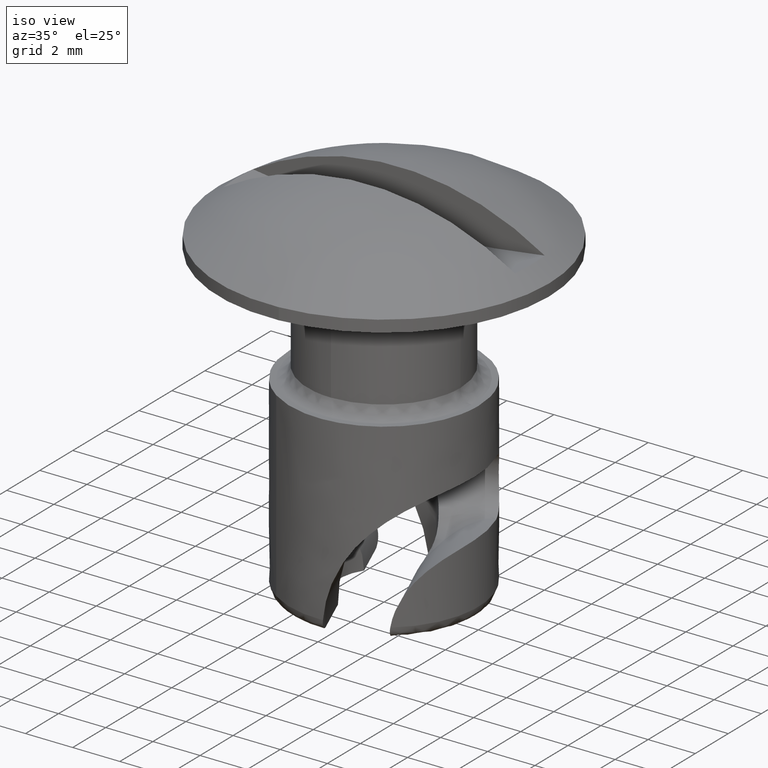
[diagram: clean part render]
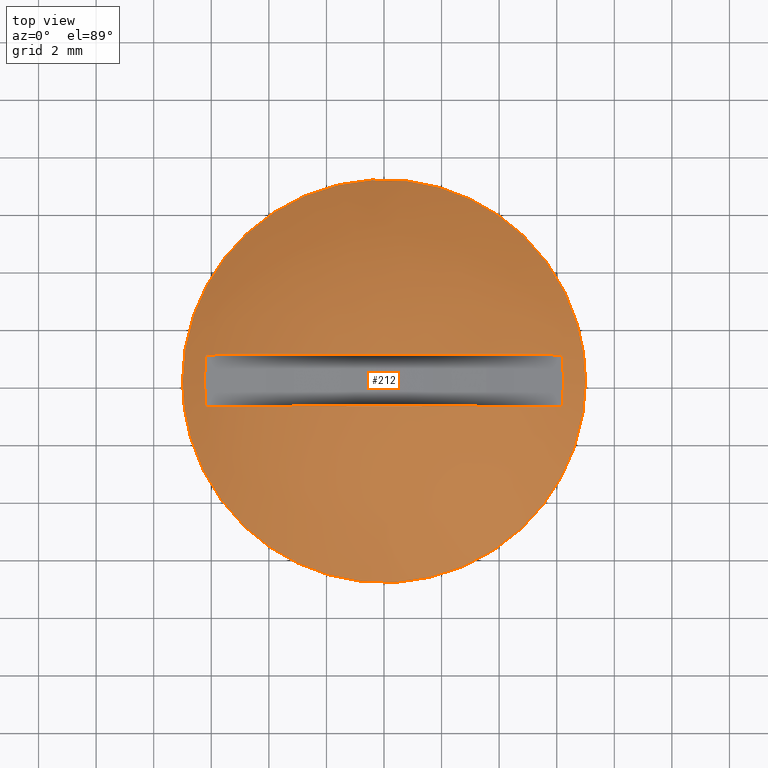
[diagram: tour spotlight — one face highlighted and labeled with its STEP entity id]
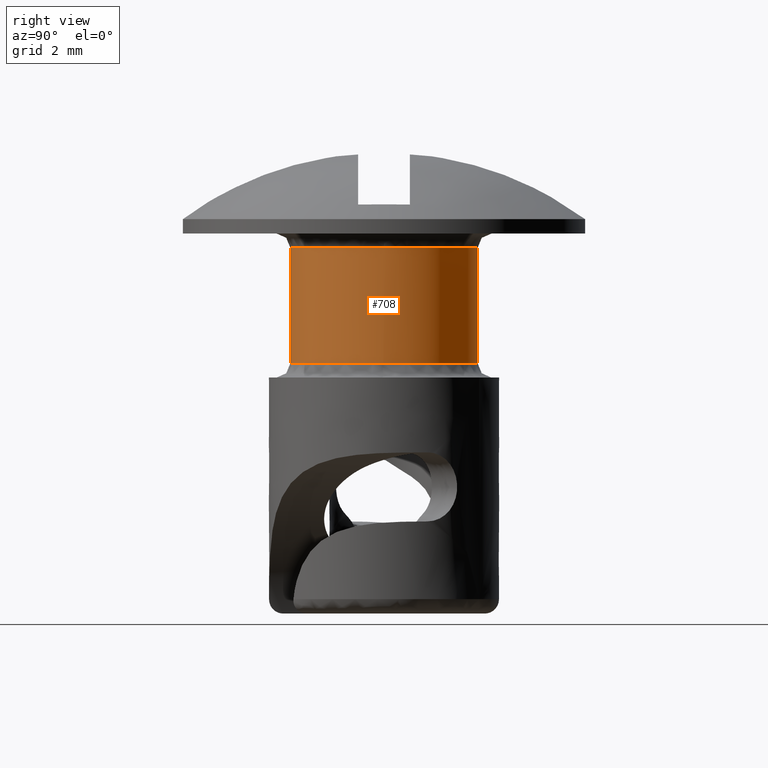
[diagram: tour spotlight — one face highlighted and labeled with its STEP entity id]
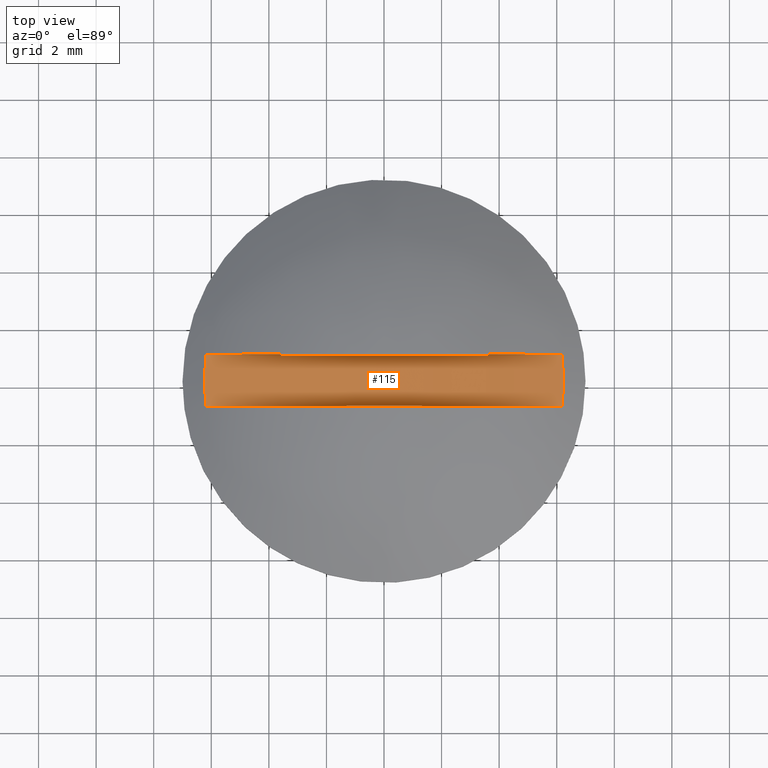
[diagram: tour spotlight — one face highlighted and labeled with its STEP entity id]
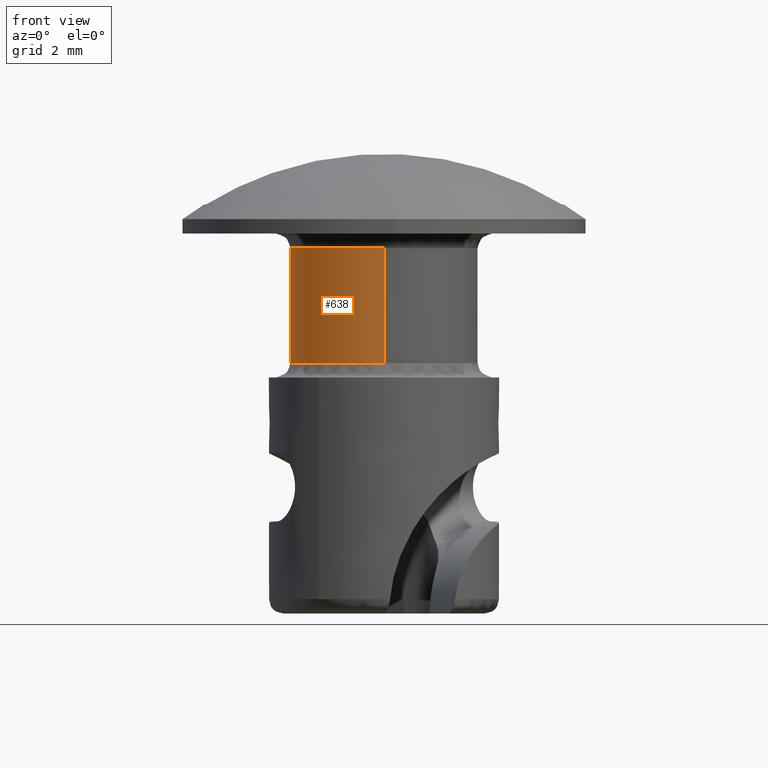
[diagram: tour spotlight — one face highlighted and labeled with its STEP entity id]
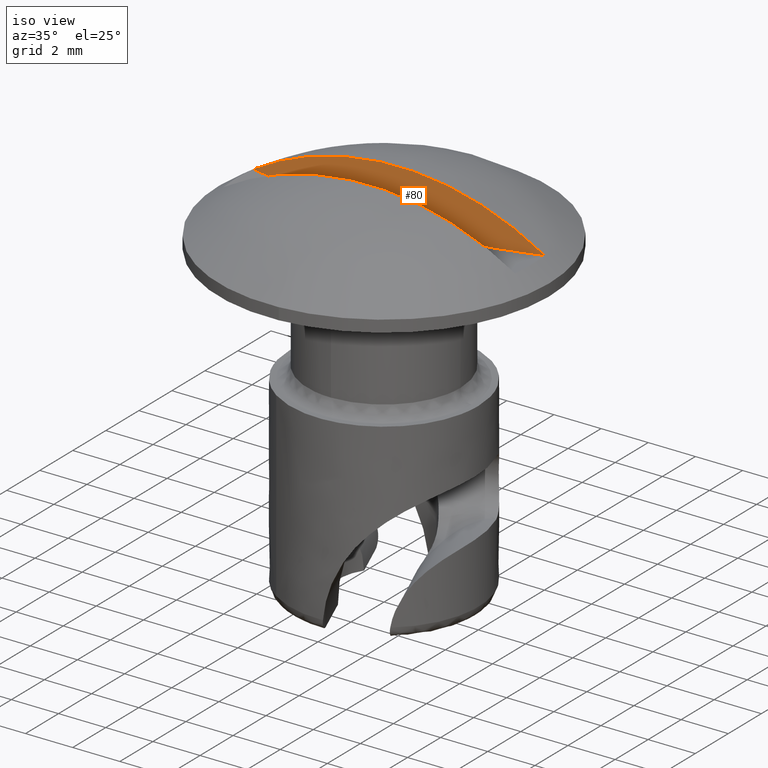
[diagram: tour spotlight — one face highlighted and labeled with its STEP entity id]
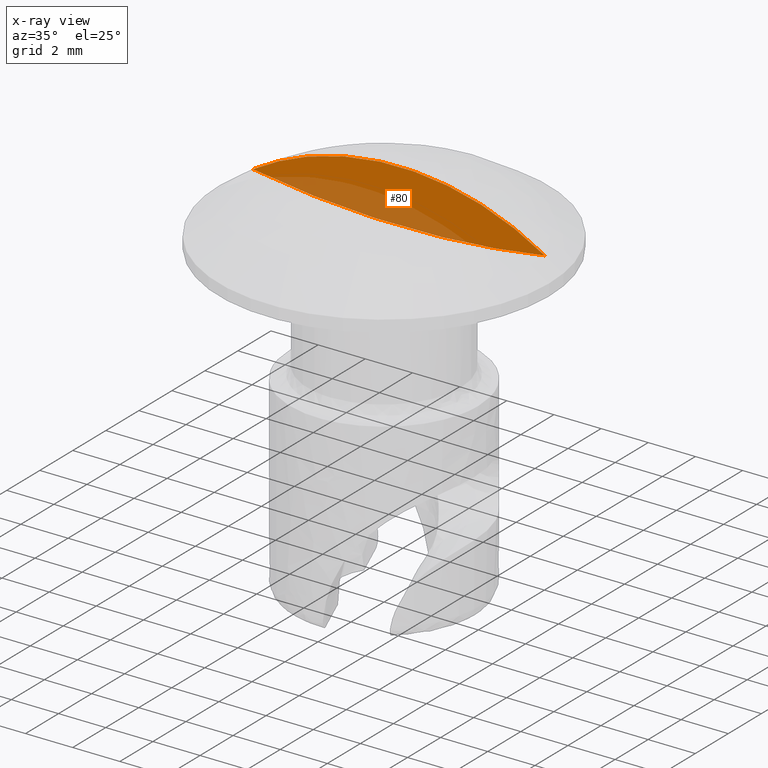
[diagram: x-ray of the same camera — body ghosted, this tour face saturated]
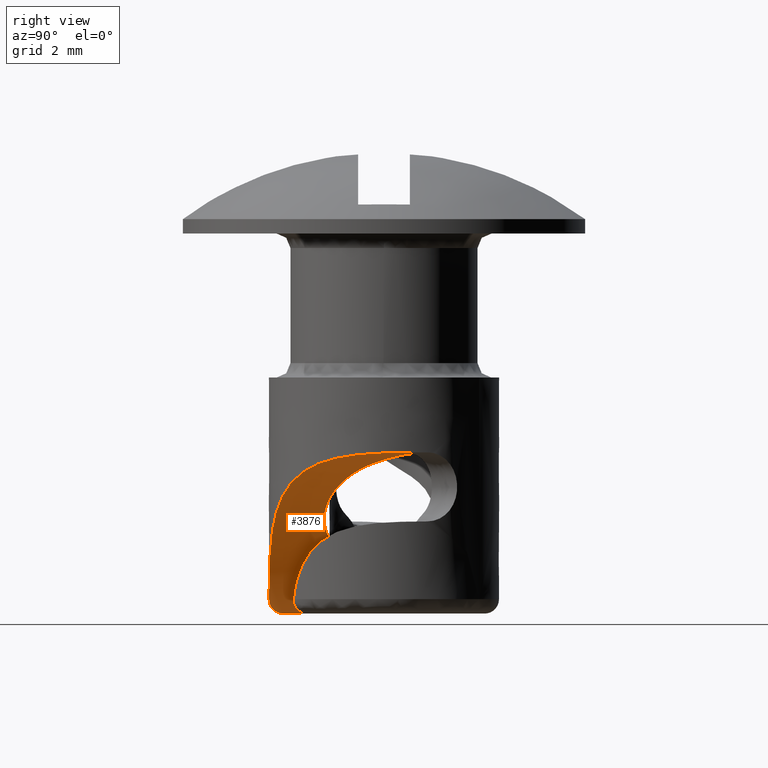
[diagram: tour spotlight — one face highlighted and labeled with its STEP entity id]
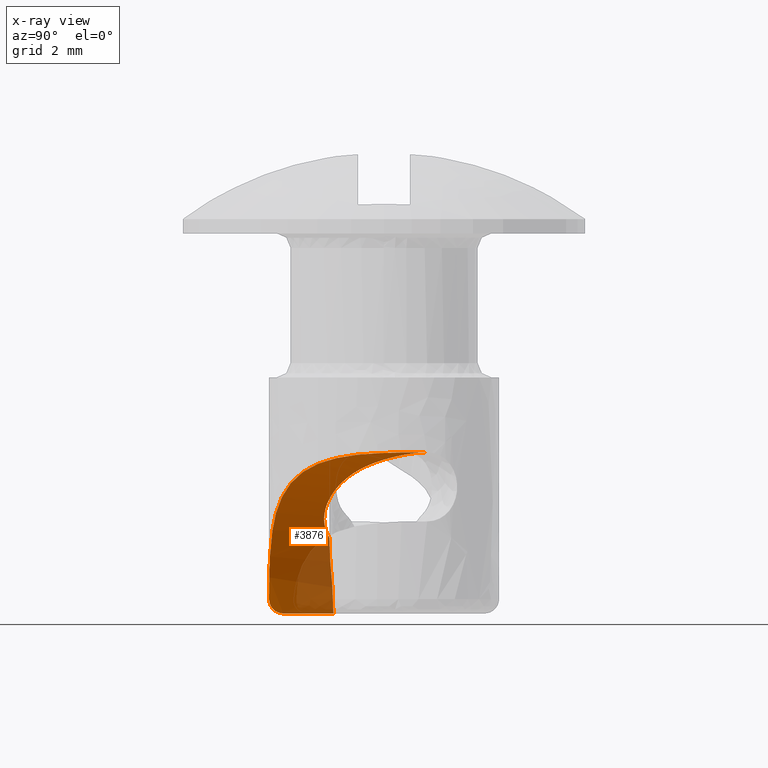
[diagram: x-ray of the same camera — body ghosted, this tour face saturated]
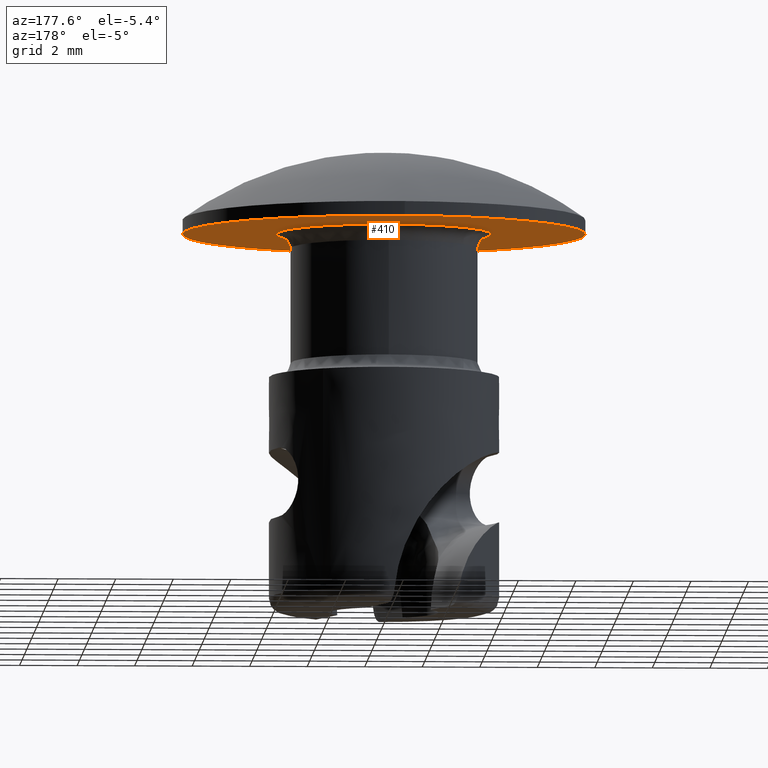
[diagram: tour spotlight — one face highlighted and labeled with its STEP entity id]
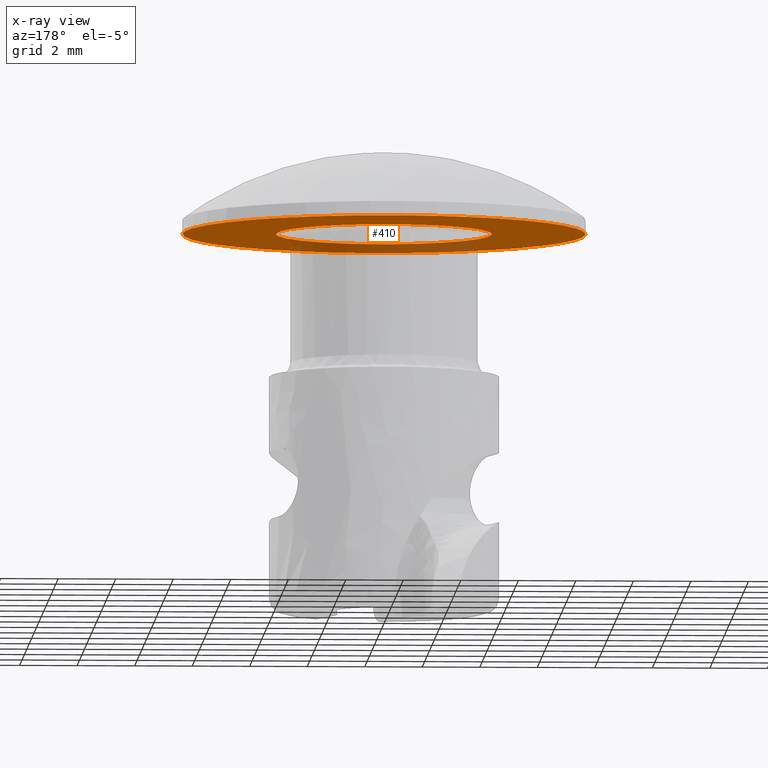
[diagram: x-ray of the same camera — body ghosted, this tour face saturated]
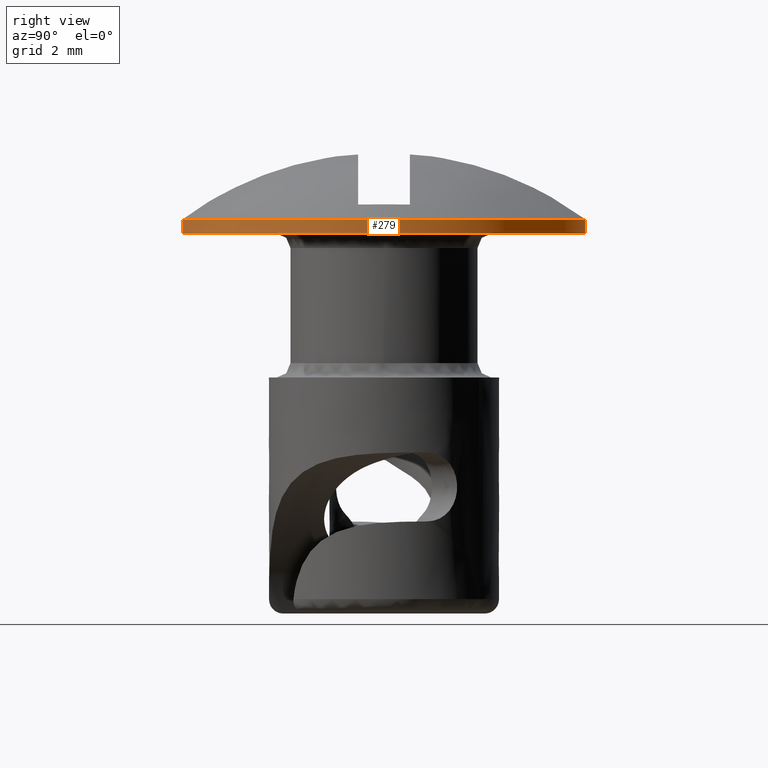
[diagram: tour spotlight — one face highlighted and labeled with its STEP entity id]
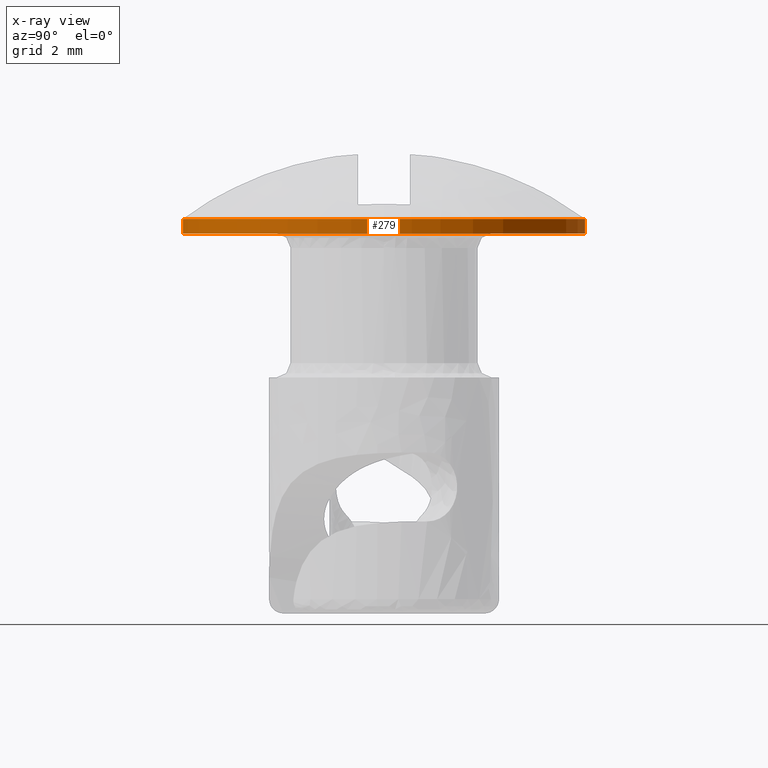
[diagram: x-ray of the same camera — body ghosted, this tour face saturated]
A machine part: a face-by-face anatomy tour. The part has 35 B-rep faces; the first image is the clean iso view, then the 8 largest visible faces are spotlighted one at a time (largest first), each with its STEP entity span.

Face 1 — top view, entity #212. In plain terms, the highlighted face is a freeform B-spline surface patch.
Definition (entity closure, byte-faithful):
#10=CARTESIAN_POINT('',(-6.188140263652630,-0.899993000000000,1.007241764877300));
#11=VERTEX_POINT('',#10);
#12=CARTESIAN_POINT('',(6.188140263652630,-0.899993000000000,1.007241764877300));
#13=VERTEX_POINT('',#12);
#27=CARTESIAN_POINT('',(6.188140263652638,-0.899993000000000,1.007241764877301));
#28=CARTESIAN_POINT('',(4.336809E-015,-0.899993000000000,4.832950620201165));
#29=CARTESIAN_POINT('',(-6.188140263652632,-0.899993000000000,1.007241764877305));
#37=(BOUNDED_CURVE()B_SPLINE_CURVE(2,(#27,#28,#29),.UNSPECIFIED.,.F.,.U.)CURVE()GEOMETRIC_REPRESENTATION_ITEM()QUASI_UNIFORM_CURVE()RATIONAL_B_SPLINE_CURVE((1.0,0.850575323171964,1.0))REPRESENTATION_ITEM(''));
#38=EDGE_CURVE('',#13,#11,#37,.T.);
#48=CARTESIAN_POINT('',(6.188138312163890,0.900010000000019,1.007241442786190));
#49=VERTEX_POINT('',#48);
#50=CARTESIAN_POINT('',(-6.188138312163890,0.900010000000019,1.007241442786190));
#51=VERTEX_POINT('',#50);
#52=CARTESIAN_POINT('',(6.188138312163890,0.900010000000019,1.007241442786190));
#53=CARTESIAN_POINT('',(3.469447E-015,0.900010000000000,4.832948008270046));
#54=CARTESIAN_POINT('',(-6.188138312163883,0.900010000000000,1.007241442786190));
#62=(BOUNDED_CURVE()B_SPLINE_CURVE(2,(#52,#53,#54),.UNSPECIFIED.,.F.,.U.)CURVE()GEOMETRIC_REPRESENTATION_ITEM()QUASI_UNIFORM_CURVE()RATIONAL_B_SPLINE_CURVE((1.0,0.850575389776752,1.0))REPRESENTATION_ITEM(''));
#63=EDGE_CURVE('',#49,#51,#62,.T.);
#96=CARTESIAN_POINT('',(-6.188140263652633,-0.899993000000000,1.007241764877306));
#97=CARTESIAN_POINT('',(-6.222578031573591,-0.599992461646414,1.012925682206770));
#98=CARTESIAN_POINT('',(-6.256576167310548,0.000008576230895,1.018609544404045));
#99=CARTESIAN_POINT('',(-6.222576732931840,0.600009538353602,1.012925466026022));
#100=CARTESIAN_POINT('',(-6.188138312163877,0.900010000000020,1.007241442786188));
#101=B_SPLINE_CURVE_WITH_KNOTS('',3,(#96,#97,#98,#99,#100),.UNSPECIFIED.,.F.,.U.,(4,1,4),(0.0,0.500000000000000,1.0),.UNSPECIFIED.);
#102=EDGE_CURVE('',#11,#51,#101,.T.);
#105=CARTESIAN_POINT('',(6.188138312163890,0.900010000000019,1.007241442786190));
#106=CARTESIAN_POINT('',(6.222576732931836,0.600009538353601,1.012925466026024));
#107=CARTESIAN_POINT('',(6.256576167337600,0.000008576230896,1.018609544398034));
#108=CARTESIAN_POINT('',(6.222578031573598,-0.599992461646414,1.012925682206767));
#109=CARTESIAN_POINT('',(6.188140263652638,-0.899993000000001,1.007241764877303));
#110=B_SPLINE_CURVE_WITH_KNOTS('',3,(#105,#106,#107,#108,#109),.UNSPECIFIED.,.F.,.U.,(4,1,4),(0.0,0.500000000000000,1.0),.UNSPECIFIED.);
#111=EDGE_CURVE('',#49,#13,#110,.T.);
#116=CARTESIAN_POINT('',(-6.763764852925422,-6.763613566578109,-2.088677180120003));
#117=CARTESIAN_POINT('',(-3.772557445157547,-7.544946127370692,0.073355971839861));
#118=CARTESIAN_POINT('',(3.772557635743908,-7.544946127370692,0.073355971839861));
#119=CARTESIAN_POINT('',(6.763765123854193,-6.763613495808874,-2.088677375946274));
#120=CARTESIAN_POINT('',(-7.545075899965879,-3.772453568946792,0.073248083667375));
#121=CARTESIAN_POINT('',(-4.265257953061460,-4.265162551268214,2.800007999999895));
#122=CARTESIAN_POINT('',(4.265258168538628,-4.265162551268214,2.800007999999895));
#123=CARTESIAN_POINT('',(7.545076193071401,-3.772453524915163,0.073247839986652));
#124=CARTESIAN_POINT('',(-7.545075899965879,3.772453360355841,0.073248083667375));
#125=CARTESIAN_POINT('',(-4.265257953061460,4.265162315433817,2.800007999999895));
#126=CARTESIAN_POINT('',(4.265258168538628,4.265162315433817,2.800007999999895));
#127=CARTESIAN_POINT('',(7.545076193071401,3.772453316324214,0.073247839986652));
#128=CARTESIAN_POINT('',(-6.763764930380590,6.763613270049848,-2.088676965797827));
#129=CARTESIAN_POINT('',(-3.772557493349566,7.544945806568517,0.073356238539129));
#130=CARTESIAN_POINT('',(3.772557683935930,7.544945806568517,0.073356238539129));
#131=CARTESIAN_POINT('',(6.763765201309358,6.763613199280611,-2.088677161624101));
#139=(BOUNDED_SURFACE()B_SPLINE_SURFACE(2,2,((#116,#120,#124,#128),(#117,#121,#125,#129),(#118,#122,#126,#130),(#119,#123,#127,#131)),.UNSPECIFIED.,.F.,.F.,.U.)B_SPLINE_SURFACE_WITH_KNOTS((3,1,3),(3,1,3),(0.933526461857557,8.819893458954921,16.706260854464769),(0.933702857649326,8.819893458954923,16.706083624207970),.UNSPECIFIED.)GEOMETRIC_REPRESENTATION_ITEM()RATIONAL_B_SPLINE_SURFACE(((1.261208231157438,1.130607036857177,1.130607036857177,1.261208216714728),(1.130601194300260,1.0,1.0,1.130601179857550),(1.130601194300260,1.0,1.0,1.130601179857550),(1.261208244353748,1.130607050053488,1.130607050053488,1.261208229911039)))REPRESENTATION_ITEM('')SURFACE());
#140=CARTESIAN_POINT('',(0.427335401912413,-6.986943856526480,0.500000000000000));
#141=VERTEX_POINT('',#140);
#142=CARTESIAN_POINT('',(-7.0,0.0,0.500000000000000));
#143=VERTEX_POINT('',#142);
#144=CARTESIAN_POINT('',(0.427335401912413,-6.986943856526480,0.500000000000000));
#145=CARTESIAN_POINT('',(0.213867149541050,-6.999999999998649,0.500000000000000));
#146=CARTESIAN_POINT('',(-8.338369E-014,-6.999999999998670,0.500000000000000));
#147=CARTESIAN_POINT('',(-7.000000000000040,-6.999999999999355,0.500000000000000));
#148=CARTESIAN_POINT('',(-7.0,0.0,0.500000000000000));
#156=(BOUNDED_CURVE()B_SPLINE_CURVE(2,(#144,#145,#146,#147,#148),.UNSPECIFIED.,.F.,.U.)B_SPLINE_CURVE_WITH_KNOTS((3,2,3),(0.739333070281084,0.750000000000000,1.0),.UNSPECIFIED.)CURVE()GEOMETRIC_REPRESENTATION_ITEM()RATIONAL_B_SPLINE_CURVE((0.976072273221702,0.987502914479079,1.0,0.707106781186547,1.0))REPRESENTATION_ITEM(''));
#157=EDGE_CURVE('',#141,#143,#156,.T.);
#158=ORIENTED_EDGE('',*,*,#157,.F.);
#159=CARTESIAN_POINT('',(7.0,0.0,0.500000000000000));
#160=VERTEX_POINT('',#159);
#161=CARTESIAN_POINT('',(7.0,0.0,0.500000000000000));
#162=CARTESIAN_POINT('',(6.999999999999957,-6.584946599166124,0.500000000000000));
#163=CARTESIAN_POINT('',(0.427335401912413,-6.986943856526480,0.500000000000000));
#171=(BOUNDED_CURVE()B_SPLINE_CURVE(2,(#161,#162,#163),.UNSPECIFIED.,.F.,.U.)B_SPLINE_CURVE_WITH_KNOTS((3,3),(0.500000000000000,0.739333070281084),.UNSPECIFIED.)CURVE()GEOMETRIC_REPRESENTATION_ITEM()RATIONAL_B_SPLINE_CURVE((1.0,0.719603866707468,0.976072273221702))REPRESENTATION_ITEM(''));
#172=EDGE_CURVE('',#160,#141,#171,.T.);
#173=ORIENTED_EDGE('',*,*,#172,.F.);
#174=CARTESIAN_POINT('',(-0.427335401912414,6.986943856526481,0.500000000000000));
#175=VERTEX_POINT('',#174);
#176=CARTESIAN_POINT('',(-0.427335401912414,6.986943856526481,0.500000000000000));
#177=CARTESIAN_POINT('',(-0.213867149541051,6.999999999998651,0.500000000000000));
#178=CARTESIAN_POINT('',(8.246797E-014,6.999999999998671,0.500000000000000));
#179=CARTESIAN_POINT('',(7.000000000000040,6.999999999999355,0.500000000000000));
#180=CARTESIAN_POINT('',(7.0,0.0,0.500000000000000));
#188=(BOUNDED_CURVE()B_SPLINE_CURVE(2,(#176,#177,#178,#179,#180),.UNSPECIFIED.,.F.,.U.)B_SPLINE_CURVE_WITH_KNOTS((3,2,3),(0.239333070281084,0.250000000000000,0.500000000000000),.UNSPECIFIED.)CURVE()GEOMETRIC_REPRESENTATION_ITEM()RATIONAL_B_SPLINE_CURVE((0.976072273221702,0.987502914479079,1.0,0.707106781186547,1.0))REPRESENTATION_ITEM(''));
#189=EDGE_CURVE('',#175,#160,#188,.T.);
#190=ORIENTED_EDGE('',*,*,#189,.F.);
#191=CARTESIAN_POINT('',(-7.0,0.0,0.500000000000000));
#192=CARTESIAN_POINT('',(-6.999999999999957,6.584946599166123,0.500000000000000));
#193=CARTESIAN_POINT('',(-0.427335401912414,6.986943856526481,0.500000000000000));
#201=(BOUNDED_CURVE()B_SPLINE_CURVE(2,(#191,#192,#193),.UNSPECIFIED.,.F.,.U.)B_SPLINE_CURVE_WITH_KNOTS((3,3),(0.0,0.239333070281084),.UNSPECIFIED.)CURVE()GEOMETRIC_REPRESENTATION_ITEM()RATIONAL_B_SPLINE_CURVE((1.0,0.719603866707468,0.976072273221702))REPRESENTATION_ITEM(''));
#202=EDGE_CURVE('',#143,#175,#201,.T.);
#203=ORIENTED_EDGE('',*,*,#202,.F.);
#204=EDGE_LOOP('',(#158,#173,#190,#203));
#205=FACE_OUTER_BOUND('',#204,.T.);
#206=ORIENTED_EDGE('',*,*,#63,.F.);
#207=ORIENTED_EDGE('',*,*,#111,.T.);
#208=ORIENTED_EDGE('',*,*,#38,.T.);
#209=ORIENTED_EDGE('',*,*,#102,.T.);
#210=EDGE_LOOP('',(#206,#207,#208,#209));
#211=FACE_BOUND('',#210,.T.);
#212=ADVANCED_FACE('',(#205,#211),#139,.T.);

Face 2 — right view, entity #708. In plain terms, the highlighted face is a freeform B-spline surface patch.
Definition (entity closure, byte-faithful):
#434=CARTESIAN_POINT('',(3.249999999999999,-2.270239E-016,-0.499999999925609));
#435=VERTEX_POINT('',#434);
#449=CARTESIAN_POINT('',(-0.028359991532612,3.249876260856513,-0.499999999925609));
#450=VERTEX_POINT('',#449);
#451=CARTESIAN_POINT('',(-0.028359991532612,3.249876260856513,-0.499999999925609));
#452=CARTESIAN_POINT('',(-0.014180265713064,3.249999999999760,-0.499999999925609));
#453=CARTESIAN_POINT('',(1.090618E-015,3.249999999999761,-0.499999999925609));
#454=CARTESIAN_POINT('',(3.250000000000000,3.249999999999881,-0.499999999925609));
#455=CARTESIAN_POINT('',(3.249999999999999,-2.270239E-016,-0.499999999925609));
#463=(BOUNDED_CURVE()B_SPLINE_CURVE(2,(#451,#452,#453,#454,#455),.UNSPECIFIED.,.F.,.U.)B_SPLINE_CURVE_WITH_KNOTS((3,2,3),(0.748460173351792,0.750000000000000,1.0),.UNSPECIFIED.)CURVE()GEOMETRIC_REPRESENTATION_ITEM()RATIONAL_B_SPLINE_CURVE((0.996414184746619,0.998195980866366,1.0,0.707106781186547,1.0))REPRESENTATION_ITEM(''));
#464=EDGE_CURVE('',#450,#435,#463,.T.);
#524=CARTESIAN_POINT('',(0.028359991532612,-3.249876260856513,-0.499999999925609));
#525=VERTEX_POINT('',#524);
#541=CARTESIAN_POINT('',(3.249999999999999,-2.270239E-016,-0.499999999925609));
#542=CARTESIAN_POINT('',(3.249999999999999,-3.221762672514294,-0.499999999925609));
#543=CARTESIAN_POINT('',(0.028359991532612,-3.249876260856513,-0.499999999925609));
#551=(BOUNDED_CURVE()B_SPLINE_CURVE(2,(#541,#542,#543),.UNSPECIFIED.,.F.,.U.)B_SPLINE_CURVE_WITH_KNOTS((3,3),(0.0,0.248460173351792),.UNSPECIFIED.)CURVE()GEOMETRIC_REPRESENTATION_ITEM()RATIONAL_B_SPLINE_CURVE((1.0,0.708910800320182,0.996414184746619))REPRESENTATION_ITEM(''));
#552=EDGE_CURVE('',#435,#525,#551,.T.);
#575=CARTESIAN_POINT('',(-0.028360243542358,3.249876258657431,-4.499992000020387));
#576=VERTEX_POINT('',#575);
#607=CARTESIAN_POINT('',(0.028360243542359,-3.249876258657431,-4.499992000020388));
#608=VERTEX_POINT('',#607);
#624=CARTESIAN_POINT('',(0.028360243542359,-3.249876258657431,-4.499992000020388));
#625=CARTESIAN_POINT('',(0.028359991532612,-3.249876260856513,-0.499999999925609));
#626=QUASI_UNIFORM_CURVE('',1,(#624,#625),.UNSPECIFIED.,.F.,.U.);
#627=EDGE_CURVE('',#608,#525,#626,.T.);
#631=CARTESIAN_POINT('',(-0.028360243542358,3.249876258657431,-4.499992000020387));
#632=CARTESIAN_POINT('',(-0.028359991532612,3.249876260856513,-0.499999999925609));
#633=QUASI_UNIFORM_CURVE('',1,(#631,#632),.UNSPECIFIED.,.F.,.U.);
#634=EDGE_CURVE('',#576,#450,#633,.T.);
#639=CARTESIAN_POINT('',(0.028361240369715,-3.249876249958556,-4.599991800042868));
#640=CARTESIAN_POINT('',(3.278237490328270,-3.221515009588841,-4.599991800042868));
#641=CARTESIAN_POINT('',(3.249876249958556,0.028361240369715,-4.599991800042868));
#642=CARTESIAN_POINT('',(3.221515009588841,3.278237490328270,-4.599991800042868));
#643=CARTESIAN_POINT('',(-0.028361240369715,3.249876249958556,-4.599991800042868));
#644=CARTESIAN_POINT('',(0.028361240369715,-3.249876249958556,-0.397500204922677));
#645=CARTESIAN_POINT('',(3.278237490328270,-3.221515009588841,-0.397500204922677));
#646=CARTESIAN_POINT('',(3.249876249958556,0.028361240369715,-0.397500204922677));
#647=CARTESIAN_POINT('',(3.221515009588841,3.278237490328270,-0.397500204922677));
#648=CARTESIAN_POINT('',(-0.028361240369715,3.249876249958556,-0.397500204922677));
#656=(BOUNDED_SURFACE()B_SPLINE_SURFACE(2,1,((#639,#644),(#640,#645),(#641,#646),(#642,#647),(#643,#648)),.UNSPECIFIED.,.F.,.F.,.U.)B_SPLINE_SURFACE_WITH_KNOTS((3,2,3),(2,2),(0.0,5.384776310850235,10.769552621700470),(0.0,4.202491595120191),.UNSPECIFIED.)GEOMETRIC_REPRESENTATION_ITEM()RATIONAL_B_SPLINE_SURFACE(((1.0,1.0),(0.707106781186548,0.707106781186548),(1.0,1.0),(0.707106781186548,0.707106781186548),(1.0,1.0)))REPRESENTATION_ITEM('')SURFACE());
#657=CARTESIAN_POINT('',(3.250000000000000,0.0,-4.499992000000176));
#658=VERTEX_POINT('',#657);
#659=CARTESIAN_POINT('',(3.250000000000000,0.0,-4.499992000000176));
#660=CARTESIAN_POINT('',(3.250000000000001,3.249999999999925,-4.499992000000300));
#661=CARTESIAN_POINT('',(1.985171E-015,3.249999999999847,-4.499992000020213));
#662=CARTESIAN_POINT('',(-0.014180391725133,3.249999999999847,-4.499992000020300));
#663=CARTESIAN_POINT('',(-0.028360243542358,3.249876258657431,-4.499992000020387));
#671=(BOUNDED_CURVE()B_SPLINE_CURVE(2,(#659,#660,#661,#662,#663),.UNSPECIFIED.,.F.,.U.)B_SPLINE_CURVE_WITH_KNOTS((3,2,3),(0.0,0.250000000000000,0.251539840307099),.UNSPECIFIED.)CURVE()GEOMETRIC_REPRESENTATION_ITEM()RATIONAL_B_SPLINE_CURVE((1.0,0.707106781186547,1.0,0.998195964863981,0.996414153136104))REPRESENTATION_ITEM(''));
#672=EDGE_CURVE('',#658,#576,#671,.T.);
#673=ORIENTED_EDGE('',*,*,#672,.T.);
#674=ORIENTED_EDGE('',*,*,#634,.T.);
#675=ORIENTED_EDGE('',*,*,#464,.T.);
#676=ORIENTED_EDGE('',*,*,#552,.T.);
#677=ORIENTED_EDGE('',*,*,#627,.F.);
#678=CARTESIAN_POINT('',(3.249743393662249,-0.040839629633071,-4.499992000040008));
#679=VERTEX_POINT('',#678);
#680=CARTESIAN_POINT('',(0.028360243542359,-3.249876258657432,-4.499992000020388));
#681=CARTESIAN_POINT('',(3.209764222192222,-3.222113542646157,-4.499992000039884));
#682=CARTESIAN_POINT('',(3.249743393662250,-0.040839629633071,-4.499992000040008));
#690=(BOUNDED_CURVE()B_SPLINE_CURVE(2,(#680,#681,#682),.UNSPECIFIED.,.F.,.U.)B_SPLINE_CURVE_WITH_KNOTS((3,3),(0.751539840307099,0.997784295921069),.UNSPECIFIED.)CURVE()GEOMETRIC_REPRESENTATION_ITEM()RATIONAL_B_SPLINE_CURVE((0.996414153136104,0.711474697456956,0.994854295642496))REPRESENTATION_ITEM(''));
#691=EDGE_CURVE('',#608,#679,#690,.T.);
#692=ORIENTED_EDGE('',*,*,#691,.T.);
#693=CARTESIAN_POINT('',(3.249743393662250,-0.040839629633071,-4.499992000040008));
#694=CARTESIAN_POINT('',(3.250000000000000,-0.020420620979730,-4.499992000020092));
#695=CARTESIAN_POINT('',(3.250000000000000,0.0,-4.499992000000176));
#703=(BOUNDED_CURVE()B_SPLINE_CURVE(2,(#693,#694,#695),.UNSPECIFIED.,.F.,.U.)B_SPLINE_CURVE_WITH_KNOTS((3,3),(0.997784295921069,1.0),.UNSPECIFIED.)CURVE()GEOMETRIC_REPRESENTATION_ITEM()RATIONAL_B_SPLINE_CURVE((0.994854295642496,0.997404141201536,1.0))REPRESENTATION_ITEM(''));
#704=EDGE_CURVE('',#679,#658,#703,.T.);
#705=ORIENTED_EDGE('',*,*,#704,.T.);
#706=EDGE_LOOP('',(#673,#674,#675,#676,#677,#692,#705));
#707=FACE_OUTER_BOUND('',#706,.T.);
#708=ADVANCED_FACE('',(#707),#656,.T.);

Face 3 — top view, entity #115. In plain terms, the highlighted face is a freeform B-spline surface patch.
Definition (entity closure, byte-faithful):
#10=CARTESIAN_POINT('',(-6.188140263652630,-0.899993000000000,1.007241764877300));
#11=VERTEX_POINT('',#10);
#12=CARTESIAN_POINT('',(6.188140263652630,-0.899993000000000,1.007241764877300));
#13=VERTEX_POINT('',#12);
#14=CARTESIAN_POINT('',(-6.188140263652636,-0.899992999999988,1.007241764877299));
#15=CARTESIAN_POINT('',(-9.540979E-015,-0.899992999999988,-0.014104269002023));
#16=CARTESIAN_POINT('',(6.188140263652626,-0.899992999999988,1.007241764877299));
#24=(BOUNDED_CURVE()B_SPLINE_CURVE(2,(#14,#15,#16),.UNSPECIFIED.,.F.,.U.)CURVE()GEOMETRIC_REPRESENTATION_ITEM()QUASI_UNIFORM_CURVE()RATIONAL_B_SPLINE_CURVE((1.0,0.986651532503229,1.0))REPRESENTATION_ITEM(''));
#25=EDGE_CURVE('',#11,#13,#24,.T.);
#48=CARTESIAN_POINT('',(6.188138312163890,0.900010000000019,1.007241442786190));
#49=VERTEX_POINT('',#48);
#50=CARTESIAN_POINT('',(-6.188138312163890,0.900010000000019,1.007241442786190));
#51=VERTEX_POINT('',#50);
#65=CARTESIAN_POINT('',(-6.188138312163890,0.900010000000019,1.007241442786190));
#66=CARTESIAN_POINT('',(-8.673617E-015,0.900010000000062,-0.014103938136785));
#67=CARTESIAN_POINT('',(6.188138312163881,0.900010000000062,1.007241442786189));
#75=(BOUNDED_CURVE()B_SPLINE_CURVE(2,(#65,#66,#67),.UNSPECIFIED.,.F.,.U.)CURVE()GEOMETRIC_REPRESENTATION_ITEM()QUASI_UNIFORM_CURVE()RATIONAL_B_SPLINE_CURVE((1.0,0.986651540979311,1.0))REPRESENTATION_ITEM(''));
#76=EDGE_CURVE('',#51,#49,#75,.T.);
#81=CARTESIAN_POINT('',(6.853035396976402,0.945010075000063,1.123056494039169));
#82=CARTESIAN_POINT('',(6.853035396976402,-0.946118076875001,1.123056494039169));
#83=CARTESIAN_POINT('',(-0.000122436915417,0.945010075000064,-0.133465008561412));
#84=CARTESIAN_POINT('',(-0.000122436915417,-0.946118076875001,-0.133465008561412));
#85=CARTESIAN_POINT('',(-6.853272306350718,0.945010075000063,1.123099931976623));
#86=CARTESIAN_POINT('',(-6.853272306350718,-0.946118076875001,1.123099931976623));
#94=(BOUNDED_SURFACE()B_SPLINE_SURFACE(1,2,((#81,#83,#85),(#82,#84,#86)),.UNSPECIFIED.,.F.,.F.,.U.)B_SPLINE_SURFACE_WITH_KNOTS((2,2),(3,3),(0.0,1.0),(0.992711938214302,14.812335573840141),.UNSPECIFIED.)GEOMETRIC_REPRESENTATION_ITEM()RATIONAL_B_SPLINE_SURFACE(((0.997453009303786,0.980899179635699,0.997048828153224),(0.997453009303786,0.980899179635699,0.997048828153224)))REPRESENTATION_ITEM('')SURFACE());
#95=ORIENTED_EDGE('',*,*,#76,.F.);
#96=CARTESIAN_POINT('',(-6.188140263652633,-0.899993000000000,1.007241764877306));
#97=CARTESIAN_POINT('',(-6.222578031573591,-0.599992461646414,1.012925682206770));
#98=CARTESIAN_POINT('',(-6.256576167310548,0.000008576230895,1.018609544404045));
#99=CARTESIAN_POINT('',(-6.222576732931840,0.600009538353602,1.012925466026022));
#100=CARTESIAN_POINT('',(-6.188138312163877,0.900010000000020,1.007241442786188));
#101=B_SPLINE_CURVE_WITH_KNOTS('',3,(#96,#97,#98,#99,#100),.UNSPECIFIED.,.F.,.U.,(4,1,4),(0.0,0.500000000000000,1.0),.UNSPECIFIED.);
#102=EDGE_CURVE('',#11,#51,#101,.T.);
#103=ORIENTED_EDGE('',*,*,#102,.F.);
#104=ORIENTED_EDGE('',*,*,#25,.T.);
#105=CARTESIAN_POINT('',(6.188138312163890,0.900010000000019,1.007241442786190));
#106=CARTESIAN_POINT('',(6.222576732931836,0.600009538353601,1.012925466026024));
#107=CARTESIAN_POINT('',(6.256576167337600,0.000008576230896,1.018609544398034));
#108=CARTESIAN_POINT('',(6.222578031573598,-0.599992461646414,1.012925682206767));
#109=CARTESIAN_POINT('',(6.188140263652638,-0.899993000000001,1.007241764877303));
#110=B_SPLINE_CURVE_WITH_KNOTS('',3,(#105,#106,#107,#108,#109),.UNSPECIFIED.,.F.,.U.,(4,1,4),(0.0,0.500000000000000,1.0),.UNSPECIFIED.);
#111=EDGE_CURVE('',#49,#13,#110,.T.);
#112=ORIENTED_EDGE('',*,*,#111,.F.);
#113=EDGE_LOOP('',(#95,#103,#104,#112));
#114=FACE_OUTER_BOUND('',#113,.T.);
#115=ADVANCED_FACE('',(#114),#94,.F.);

Face 4 — front view, entity #638. In plain terms, the highlighted face is a freeform B-spline surface patch.
Definition (entity closure, byte-faithful):
#449=CARTESIAN_POINT('',(-0.028359991532612,3.249876260856513,-0.499999999925609));
#450=VERTEX_POINT('',#449);
#466=CARTESIAN_POINT('',(-3.250000000000000,5.170135E-018,-0.499999999925609));
#467=VERTEX_POINT('',#466);
#468=CARTESIAN_POINT('',(-3.250000000000000,5.170135E-018,-0.499999999925609));
#469=CARTESIAN_POINT('',(-3.249999999999999,3.221762672514295,-0.499999999925609));
#470=CARTESIAN_POINT('',(-0.028359991532612,3.249876260856513,-0.499999999925609));
#478=(BOUNDED_CURVE()B_SPLINE_CURVE(2,(#468,#469,#470),.UNSPECIFIED.,.F.,.U.)B_SPLINE_CURVE_WITH_KNOTS((3,3),(0.500000000000000,0.748460173351792),.UNSPECIFIED.)CURVE()GEOMETRIC_REPRESENTATION_ITEM()RATIONAL_B_SPLINE_CURVE((1.0,0.708910800320181,0.996414184746619))REPRESENTATION_ITEM(''));
#479=EDGE_CURVE('',#467,#450,#478,.T.);
#524=CARTESIAN_POINT('',(0.028359991532612,-3.249876260856513,-0.499999999925609));
#525=VERTEX_POINT('',#524);
#526=CARTESIAN_POINT('',(0.028359991532612,-3.249876260856513,-0.499999999925609));
#527=CARTESIAN_POINT('',(0.014180265713063,-3.249999999999760,-0.499999999925609));
#528=CARTESIAN_POINT('',(-2.339576E-015,-3.249999999999761,-0.499999999925609));
#529=CARTESIAN_POINT('',(-3.250000000000001,-3.249999999999881,-0.499999999925609));
#530=CARTESIAN_POINT('',(-3.250000000000000,5.170135E-018,-0.499999999925609));
#538=(BOUNDED_CURVE()B_SPLINE_CURVE(2,(#526,#527,#528,#529,#530),.UNSPECIFIED.,.F.,.U.)B_SPLINE_CURVE_WITH_KNOTS((3,2,3),(0.248460173351792,0.250000000000000,0.500000000000000),.UNSPECIFIED.)CURVE()GEOMETRIC_REPRESENTATION_ITEM()RATIONAL_B_SPLINE_CURVE((0.996414184746619,0.998195980866366,1.0,0.707106781186547,1.0))REPRESENTATION_ITEM(''));
#539=EDGE_CURVE('',#525,#467,#538,.T.);
#557=CARTESIAN_POINT('',(-0.028361240369715,3.249876249958556,-4.599991800042868));
#558=CARTESIAN_POINT('',(-3.278237490328270,3.221515009588841,-4.599991800042868));
#559=CARTESIAN_POINT('',(-3.249876249958556,-0.028361240369715,-4.599991800042868));
#560=CARTESIAN_POINT('',(-3.221515009588841,-3.278237490328270,-4.599991800042868));
#561=CARTESIAN_POINT('',(0.028361240369715,-3.249876249958556,-4.599991800042868));
#562=CARTESIAN_POINT('',(-0.028361240369715,3.249876249958556,-0.397500204922677));
#563=CARTESIAN_POINT('',(-3.278237490328270,3.221515009588841,-0.397500204922677));
#564=CARTESIAN_POINT('',(-3.249876249958556,-0.028361240369715,-0.397500204922677));
#565=CARTESIAN_POINT('',(-3.221515009588841,-3.278237490328270,-0.397500204922677));
#566=CARTESIAN_POINT('',(0.028361240369715,-3.249876249958556,-0.397500204922677));
#574=(BOUNDED_SURFACE()B_SPLINE_SURFACE(2,1,((#557,#562),(#558,#563),(#559,#564),(#560,#565),(#561,#566)),.UNSPECIFIED.,.F.,.F.,.U.)B_SPLINE_SURFACE_WITH_KNOTS((3,2,3),(2,2),(0.0,5.384776310850235,10.769552621700470),(0.0,4.202491595120191),.UNSPECIFIED.)GEOMETRIC_REPRESENTATION_ITEM()RATIONAL_B_SPLINE_SURFACE(((1.0,1.0),(0.707106781186548,0.707106781186548),(1.0,1.0),(0.707106781186548,0.707106781186548),(1.0,1.0)))REPRESENTATION_ITEM('')SURFACE());
#575=CARTESIAN_POINT('',(-0.028360243542358,3.249876258657431,-4.499992000020387));
#576=VERTEX_POINT('',#575);
#577=CARTESIAN_POINT('',(-3.249743393662249,0.040839629633072,-4.499992000040008));
#578=VERTEX_POINT('',#577);
#579=CARTESIAN_POINT('',(-0.028360243542358,3.249876258657431,-4.499992000020387));
#580=CARTESIAN_POINT('',(-3.209764222192221,3.222113542646157,-4.499992000039884));
#581=CARTESIAN_POINT('',(-3.249743393662249,0.040839629633072,-4.499992000040008));
#589=(BOUNDED_CURVE()B_SPLINE_CURVE(2,(#579,#580,#581),.UNSPECIFIED.,.F.,.U.)B_SPLINE_CURVE_WITH_KNOTS((3,3),(0.251539840307099,0.497784295921069),.UNSPECIFIED.)CURVE()GEOMETRIC_REPRESENTATION_ITEM()RATIONAL_B_SPLINE_CURVE((0.996414153136104,0.711474697456956,0.994854295642496))REPRESENTATION_ITEM(''));
#590=EDGE_CURVE('',#576,#578,#589,.T.);
#591=ORIENTED_EDGE('',*,*,#590,.T.);
#592=CARTESIAN_POINT('',(-3.250000000000000,0.0,-4.499992000000176));
#593=VERTEX_POINT('',#592);
#594=CARTESIAN_POINT('',(-3.249743393662249,0.040839629633072,-4.499992000040008));
#595=CARTESIAN_POINT('',(-3.250000000000000,0.020420620979730,-4.499992000020092));
#596=CARTESIAN_POINT('',(-3.250000000000000,0.0,-4.499992000000176));
#604=(BOUNDED_CURVE()B_SPLINE_CURVE(2,(#594,#595,#596),.UNSPECIFIED.,.F.,.U.)B_SPLINE_CURVE_WITH_KNOTS((3,3),(0.497784295921069,0.500000000000000),.UNSPECIFIED.)CURVE()GEOMETRIC_REPRESENTATION_ITEM()RATIONAL_B_SPLINE_CURVE((0.994854295642496,0.997404141201536,1.0))REPRESENTATION_ITEM(''));
#605=EDGE_CURVE('',#578,#593,#604,.T.);
#606=ORIENTED_EDGE('',*,*,#605,.T.);
#607=CARTESIAN_POINT('',(0.028360243542359,-3.249876258657431,-4.499992000020388));
#608=VERTEX_POINT('',#607);
#609=CARTESIAN_POINT('',(-3.250000000000000,0.0,-4.499992000000176));
#610=CARTESIAN_POINT('',(-3.250000000000001,-3.249999999999924,-4.499992000000300));
#611=CARTESIAN_POINT('',(-1.667368E-015,-3.249999999999847,-4.499992000020214));
#612=CARTESIAN_POINT('',(0.014180391725134,-3.249999999999847,-4.499992000020301));
#613=CARTESIAN_POINT('',(0.028360243542359,-3.249876258657432,-4.499992000020388));
#621=(BOUNDED_CURVE()B_SPLINE_CURVE(2,(#609,#610,#611,#612,#613),.UNSPECIFIED.,.F.,.U.)B_SPLINE_CURVE_WITH_KNOTS((3,2,3),(0.500000000000000,0.750000000000000,0.751539840307099),.UNSPECIFIED.)CURVE()GEOMETRIC_REPRESENTATION_ITEM()RATIONAL_B_SPLINE_CURVE((1.0,0.707106781186547,1.0,0.998195964863981,0.996414153136104))REPRESENTATION_ITEM(''));
#622=EDGE_CURVE('',#593,#608,#621,.T.);
#623=ORIENTED_EDGE('',*,*,#622,.T.);
#624=CARTESIAN_POINT('',(0.028360243542359,-3.249876258657431,-4.499992000020388));
#625=CARTESIAN_POINT('',(0.028359991532612,-3.249876260856513,-0.499999999925609));
#626=QUASI_UNIFORM_CURVE('',1,(#624,#625),.UNSPECIFIED.,.F.,.U.);
#627=EDGE_CURVE('',#608,#525,#626,.T.);
#628=ORIENTED_EDGE('',*,*,#627,.T.);
#629=ORIENTED_EDGE('',*,*,#539,.T.);
#630=ORIENTED_EDGE('',*,*,#479,.T.);
#631=CARTESIAN_POINT('',(-0.028360243542358,3.249876258657431,-4.499992000020387));
#632=CARTESIAN_POINT('',(-0.028359991532612,3.249876260856513,-0.499999999925609));
#633=QUASI_UNIFORM_CURVE('',1,(#631,#632),.UNSPECIFIED.,.F.,.U.);
#634=EDGE_CURVE('',#576,#450,#633,.T.);
#635=ORIENTED_EDGE('',*,*,#634,.F.);
#636=EDGE_LOOP('',(#591,#606,#623,#628,#629,#630,#635));
#637=FACE_OUTER_BOUND('',#636,.T.);
#638=ADVANCED_FACE('',(#637),#574,.T.);

Face 5 — iso view, entity #80. An x-ray twin of the same camera follows (body ghosted, this face saturated) — the face is partly hidden behind the body. In plain terms, the highlighted face is a freeform B-spline surface patch.
Definition (entity closure, byte-faithful):
#43=CARTESIAN_POINT('',(-6.806333305561437,0.900010000000000,2.878810278233819));
#44=CARTESIAN_POINT('',(6.806333637519044,0.900010000000000,2.878810278233819));
#45=CARTESIAN_POINT('',(-6.806333305561437,0.900010000000000,0.386831151187017));
#46=CARTESIAN_POINT('',(6.806333637519044,0.900010000000000,0.386831151187017));
#47=B_SPLINE_SURFACE_WITH_KNOTS('',1,1,((#43,#45),(#44,#46)),.UNSPECIFIED.,.F.,.F.,.U.,(2,2),(2,2),(0.0,13.612666943080480),(0.0,2.491979127046801),.UNSPECIFIED.);
#48=CARTESIAN_POINT('',(6.188138312163890,0.900010000000019,1.007241442786190));
#49=VERTEX_POINT('',#48);
#50=CARTESIAN_POINT('',(-6.188138312163890,0.900010000000019,1.007241442786190));
#51=VERTEX_POINT('',#50);
#52=CARTESIAN_POINT('',(6.188138312163890,0.900010000000019,1.007241442786190));
#53=CARTESIAN_POINT('',(3.469447E-015,0.900010000000000,4.832948008270046));
#54=CARTESIAN_POINT('',(-6.188138312163883,0.900010000000000,1.007241442786190));
#62=(BOUNDED_CURVE()B_SPLINE_CURVE(2,(#52,#53,#54),.UNSPECIFIED.,.F.,.U.)CURVE()GEOMETRIC_REPRESENTATION_ITEM()QUASI_UNIFORM_CURVE()RATIONAL_B_SPLINE_CURVE((1.0,0.850575389776752,1.0))REPRESENTATION_ITEM(''));
#63=EDGE_CURVE('',#49,#51,#62,.T.);
#64=ORIENTED_EDGE('',*,*,#63,.T.);
#65=CARTESIAN_POINT('',(-6.188138312163890,0.900010000000019,1.007241442786190));
#66=CARTESIAN_POINT('',(-8.673617E-015,0.900010000000062,-0.014103938136785));
#67=CARTESIAN_POINT('',(6.188138312163881,0.900010000000062,1.007241442786189));
#75=(BOUNDED_CURVE()B_SPLINE_CURVE(2,(#65,#66,#67),.UNSPECIFIED.,.F.,.U.)CURVE()GEOMETRIC_REPRESENTATION_ITEM()QUASI_UNIFORM_CURVE()RATIONAL_B_SPLINE_CURVE((1.0,0.986651540979311,1.0))REPRESENTATION_ITEM(''));
#76=EDGE_CURVE('',#51,#49,#75,.T.);
#77=ORIENTED_EDGE('',*,*,#76,.T.);
#78=EDGE_LOOP('',(#64,#77));
#79=FACE_OUTER_BOUND('',#78,.T.);
#80=ADVANCED_FACE('',(#79),#47,.F.);

Face 6 — right view, entity #3876. An x-ray twin of the same camera follows (body ghosted, this face saturated) — the face is partly hidden behind the body. In plain terms, the highlighted face is a freeform B-spline surface patch.
Definition (entity closure, byte-faithful):
#2754=CARTESIAN_POINT('',(3.708735643717875,1.498425815653404,-7.600000000000000));
#2755=VERTEX_POINT('',#2754);
#3122=CARTESIAN_POINT('',(0.041622970697082,-1.899544031685065,-10.566299029834960));
#3123=VERTEX_POINT('',#3122);
#3144=CARTESIAN_POINT('',(-0.721534682210653,-1.757665412519450,-13.199992000000099));
#3145=VERTEX_POINT('',#3144);
#3146=CARTESIAN_POINT('',(-0.721534682210653,-1.757665412519450,-13.199992000000099));
#3147=CARTESIAN_POINT('',(-0.721893078104241,-1.757518288348264,-12.965842787353401));
#3148=CARTESIAN_POINT('',(-0.703208962489130,-1.765489430722806,-12.735152465446751));
#3149=CARTESIAN_POINT('',(-0.631763697145400,-1.792297521587349,-12.279764361756710));
#3150=CARTESIAN_POINT('',(-0.579070358488895,-1.810971929693898,-12.055047065684199));
#3151=CARTESIAN_POINT('',(-0.477514230229960,-1.839351954489084,-11.721563814201660));
#3152=CARTESIAN_POINT('',(-0.440060506339343,-1.848799836677858,-11.611568579605841));
#3153=CARTESIAN_POINT('',(-0.359109351128732,-1.866213963957942,-11.395070518508829));
#3154=CARTESIAN_POINT('',(-0.315540545850555,-1.874201365419363,-11.288332696329601));
#3155=CARTESIAN_POINT('',(-0.176354874779555,-1.894118616930675,-10.972221033873369));
#3156=CARTESIAN_POINT('',(-0.072309615192374,-1.902040532216150,-10.766924644616980));
#3157=CARTESIAN_POINT('',(0.041622970697111,-1.899544031685064,-10.566299029834999));
#3158=B_SPLINE_CURVE_WITH_KNOTS('',3,(#3146,#3147,#3148,#3149,#3150,#3151,#3152,#3153,#3154,#3155,#3156,#3157),.UNSPECIFIED.,.F.,.U.,(4,2,2,2,2,4),(0.0,0.249999999999999,0.499999999999998,0.624999999999999,0.749999999999999,1.0),.UNSPECIFIED.);
#3159=EDGE_CURVE('',#3145,#3123,#3158,.T.);
#3248=CARTESIAN_POINT('',(0.205768854712659,-3.994703891207740,-12.699992000000160));
#3249=VERTEX_POINT('',#3248);
#3263=CARTESIAN_POINT('',(3.708735643717875,1.498425815653404,-7.600000000000000));
#3264=CARTESIAN_POINT('',(3.789816242015302,1.297744205807735,-7.599999999999970));
#3265=CARTESIAN_POINT('',(3.853610974872032,1.093263577412488,-7.600772875729547));
#3266=CARTESIAN_POINT('',(3.948059474699816,0.677029674079290,-7.604736595366661));
#3267=CARTESIAN_POINT('',(3.978711172169416,0.465275843627494,-7.607918917681144));
#3268=CARTESIAN_POINT('',(3.995564957132692,0.195894578718415,-7.615217662911019));
#3269=CARTESIAN_POINT('',(3.997848564085063,0.141795779559010,-7.616849857873356));
#3270=CARTESIAN_POINT('',(4.000216753743072,0.034133671513432,-7.620487619688186));
#3271=CARTESIAN_POINT('',(4.000310720402404,-0.019555583718766,-7.622496360478704));
#3272=CARTESIAN_POINT('',(3.997374375231631,-0.180197743397610,-7.629181404475868));
#3273=CARTESIAN_POINT('',(3.991130562209952,-0.286725832207317,-7.634513265878188));
#3274=CARTESIAN_POINT('',(3.959775703180690,-0.604579068728949,-7.653959452422089));
#3275=CARTESIAN_POINT('',(3.922112906822729,-0.814186815777883,-7.671451332132992));
#3276=CARTESIAN_POINT('',(3.853761044358152,-1.073029672022521,-7.702641931695323));
#3277=CARTESIAN_POINT('',(3.838978122430332,-1.124771750286358,-7.709371911327249));
#3278=CARTESIAN_POINT('',(3.807509609817085,-1.227083976707175,-7.723770845920249));
#3279=CARTESIAN_POINT('',(3.757456182568843,-1.378856449089958,-7.746776668644611));
#3280=CARTESIAN_POINT('',(3.699122988859857,-1.525589463259218,-7.774337358302792));
#3281=CARTESIAN_POINT('',(3.571982284881069,-1.812368324864488,-7.836501287930684));
#3282=CARTESIAN_POINT('',(3.473289894623778,-1.994666556306956,-7.887282724575035));
#3283=CARTESIAN_POINT('',(3.333735905731934,-2.211076038045203,-7.966273291350484));
#3284=CARTESIAN_POINT('',(3.304936856167119,-2.253889410775154,-7.982896306513405));
#3285=CARTESIAN_POINT('',(3.246122206245276,-2.337801471763046,-8.017586295371046));
#3286=CARTESIAN_POINT('',(3.156252307149330,-2.460874529570284,-8.071677189101809));
#3287=CARTESIAN_POINT('',(3.061826482051081,-2.575801728123307,-8.132117061349236));
#3288=CARTESIAN_POINT('',(2.867818098297072,-2.795310921927876,-8.261970828628712));
#3289=CARTESIAN_POINT('',(2.731615405252652,-2.927880516877460,-8.360484840940163));
#3290=CARTESIAN_POINT('',(2.555468277276900,-3.077615931860113,-8.500482646460059));
#3291=CARTESIAN_POINT('',(2.519980797999549,-3.106724907485757,-8.529300169703664));
#3292=CARTESIAN_POINT('',(2.449137228549457,-3.162873647304286,-8.588113109815474));
#3293=CARTESIAN_POINT('',(2.342830668632973,-3.244196303757057,-8.678286934049607));
#3294=CARTESIAN_POINT('',(2.236691472767790,-3.317262990057821,-8.774323978974886));
#3295=CARTESIAN_POINT('',(2.095796109974275,-3.408028925196530,-8.907615685544689));
#3296=CARTESIAN_POINT('',(2.025659446669304,-3.450082715466893,-8.976882592651826));
#3297=CARTESIAN_POINT('',(1.921257087853521,-3.508612679782932,-9.084763703480409));
#3298=CARTESIAN_POINT('',(1.886589940101574,-3.527363601466302,-9.121387812844381));
#3299=CARTESIAN_POINT('',(1.817578161753505,-3.563414823586853,-9.195975244005739));
#3300=CARTESIAN_POINT('',(1.783169554541134,-3.580745444036078,-9.234012034142028));
#3301=CARTESIAN_POINT('',(1.613033766418871,-3.663472067865985,-9.426479837185491));
#3302=CARTESIAN_POINT('',(1.482986987825049,-3.717243031302735,-9.587707480761207));
#3303=CARTESIAN_POINT('',(1.236698357886627,-3.806274206021905,-9.924298447189083));
#3304=CARTESIAN_POINT('',(1.120446684108449,-3.841502833200432,-10.099662647876050));
#3305=CARTESIAN_POINT('',(0.957908198356716,-3.884011853853579,-10.373477761067990));
#3306=CARTESIAN_POINT('',(0.905705251657000,-3.896450403323480,-10.466548770707400));
#3307=CARTESIAN_POINT('',(0.805555123776746,-3.918380876203309,-10.656374165562120));
#3308=CARTESIAN_POINT('',(0.757944234396753,-3.927799075888550,-10.752505848182309));
#3309=CARTESIAN_POINT('',(0.623151315216673,-3.952217429541130,-11.043543537596660));
#3310=CARTESIAN_POINT('',(0.543759445167942,-3.963466434363898,-11.241513917056290));
#3311=CARTESIAN_POINT('',(0.407032704488644,-3.979832268829340,-11.645542024260861));
#3312=CARTESIAN_POINT('',(0.349696208037411,-3.984944904570063,-11.851599389006880));
#3313=CARTESIAN_POINT('',(0.281593372982556,-3.990140787602113,-12.167123652098409));
#3314=CARTESIAN_POINT('',(0.261884957381903,-3.991451814718027,-12.273468557289350));
#3315=CARTESIAN_POINT('',(0.229003439772380,-3.993473268308074,-12.486270620101600));
#3316=CARTESIAN_POINT('',(0.215769063158924,-3.994188776321901,-12.592977385333400));
#3317=CARTESIAN_POINT('',(0.205768854712659,-3.994703891207740,-12.699992000000160));
#3318=B_SPLINE_CURVE_WITH_KNOTS('',3,(#3263,#3264,#3265,#3266,#3267,#3268,#3269,#3270,#3271,#3272,#3273,#3274,#3275,#3276,#3277,#3278,#3279,#3280,#3281,#3282,#3283,#3284,#3285,#3286,#3287,#3288,#3289,#3290,#3291,#3292,#3293,#3294,#3295,#3296,#3297,#3298,#3299,#3300,#3301,#3302,#3303,#3304,#3305,#3306,#3307,#3308,#3309,#3310,#3311,#3312,#3313,#3314,#3315,#3316,#3317),.UNSPECIFIED.,.F.,.U.,(4,2,2,2,2,2,2,2,1,2,2,2,1,2,2,2,1,2,2,2,2,2,2,2,2,2,2,2,4),(0.0,0.062500000000000,0.125000000000001,0.140625000000001,0.156250000000001,0.187500000000001,0.250000000000001,0.265625000000001,0.281250000000001,0.312500000000001,0.375000000000001,0.390625000000001,0.406250000000002,0.437500000000002,0.500000000000001,0.515625000000001,0.531250000000001,0.562500000000001,0.593750000000001,0.609375000000001,0.625000000000001,0.687500000000001,0.750000000000001,0.781250000000001,0.812500000000001,0.875000000000001,0.937500000000000,0.968750000000000,1.0),.UNSPECIFIED.);
#3319=EDGE_CURVE('',#2755,#3249,#3318,.T.);
#3538=CARTESIAN_POINT('',(0.041622970697082,-1.899544031685065,-10.566299029834960));
#3539=CARTESIAN_POINT('',(0.080337023952727,-1.925916920086349,-10.518275681175650));
#3540=CARTESIAN_POINT('',(0.157566283537069,-1.978527237866357,-10.422475646102400));
#3541=CARTESIAN_POINT('',(0.276925222486489,-2.032810531343777,-10.269764316652131));
#3542=CARTESIAN_POINT('',(0.398690409849234,-2.067930356315856,-10.112429171735171));
#3543=CARTESIAN_POINT('',(0.523763392682317,-2.081966990022336,-9.950447861737951));
#3544=CARTESIAN_POINT('',(0.652695179609911,-2.075135563597070,-9.784843955918602));
#3545=CARTESIAN_POINT('',(0.786132785236489,-2.047095805294400,-9.616443819259633));
#3546=CARTESIAN_POINT('',(0.924684365212739,-1.997671150207141,-9.446218389260389));
#3547=CARTESIAN_POINT('',(1.068958099962270,-1.926672099629939,-9.275193212175912));
#3548=CARTESIAN_POINT('',(1.219478226865577,-1.833832441103516,-9.104492712403520));
#3549=CARTESIAN_POINT('',(1.473351892127220,-1.649119123308967,-8.831673418264311));
#3550=CARTESIAN_POINT('',(1.836480895491036,-1.307969351918708,-8.484393728812755));
#3551=CARTESIAN_POINT('',(2.241922950667711,-0.827934280247806,-8.173138407613626));
#3552=CARTESIAN_POINT('',(2.623364836430792,-0.244516752602851,-7.926362314673606));
#3553=CARTESIAN_POINT('',(2.923707821034301,0.244243292370473,-7.781740120157221));
#3554=CARTESIAN_POINT('',(3.192700297457694,0.671924693570219,-7.692521276489906));
#3555=CARTESIAN_POINT('',(3.332576786062903,0.883303695854403,-7.657672318949382));
#3556=CARTESIAN_POINT('',(3.439930505598148,1.038642757485848,-7.636216404067588));
#3557=CARTESIAN_POINT('',(3.514753502540670,1.145228667169797,-7.623559561547103));
#3558=CARTESIAN_POINT('',(3.589464154738334,1.254273119151857,-7.613266218328103));
#3559=CARTESIAN_POINT('',(3.644901410151814,1.340837834091974,-7.606883921406742));
#3560=CARTESIAN_POINT('',(3.681739384223771,1.409171771649631,-7.603081280044404));
#3561=CARTESIAN_POINT('',(3.706876293107457,1.458957937324387,-7.600812401529537));
#3562=CARTESIAN_POINT('',(3.708232901033541,1.487754247319345,-7.600219662135492));
#3563=CARTESIAN_POINT('',(3.708735643717875,1.498425815653404,-7.600000000000000));
#3564=B_SPLINE_CURVE_WITH_KNOTS('',3,(#3538,#3539,#3540,#3541,#3542,#3543,#3544,#3545,#3546,#3547,#3548,#3549,#3550,#3551,#3552,#3553,#3554,#3555,#3556,#3557,#3558,#3559,#3560,#3561,#3562,#3563),.UNSPECIFIED.,.F.,.U.,(4,1,1,1,1,1,1,1,1,1,1,1,1,1,1,1,1,1,1,1,1,1,1,4),(0.0,0.031070766937918,0.061981945147610,0.093048224194002,0.124579646254499,0.156872854949316,0.190204156632722,0.224825007610403,0.260959948859397,0.298806577882013,0.338536957236383,0.453390360073327,0.578123497191115,0.661018045518953,0.794985553603108,0.851296974716054,0.898369534915195,0.913331355783436,0.939241339973330,0.958897329689246,0.974726261610893,0.986763860143303,0.995094844756684,1.0),.UNSPECIFIED.);
#3565=EDGE_CURVE('',#3123,#2755,#3564,.T.);
#3820=CARTESIAN_POINT('',(-1.263009121944289,-0.402468503570591,-13.444254088502399));
#3821=CARTESIAN_POINT('',(0.310787216796364,-4.297752818926740,-13.444254088502399));
#3822=CARTESIAN_POINT('',(-1.294582720788174,-0.415225060021550,-12.684935138435650));
#3823=CARTESIAN_POINT('',(0.279213617952479,-4.310509375377698,-12.684935138435650));
#3824=CARTESIAN_POINT('',(-1.182505383548568,-0.369942896070607,-11.926631448659281));
#3825=CARTESIAN_POINT('',(0.391290955192085,-4.265227211426756,-11.926631448659281));
#3826=CARTESIAN_POINT('',(-0.684702770570428,-0.168817672262934,-10.504435694872869));
#3827=CARTESIAN_POINT('',(0.889093568170225,-4.064101987619083,-10.504435694872869));
#3828=CARTESIAN_POINT('',(-0.304187832099370,-0.015079724395803,-9.855429289042210));
#3829=CARTESIAN_POINT('',(1.269608506641283,-3.910364039751952,-9.855429289042210));
#3830=CARTESIAN_POINT('',(0.673712695975337,0.380017564053554,-8.760665273795624));
#3831=CARTESIAN_POINT('',(2.247509034715990,-3.515266751302595,-8.760665273795624));
#3832=CARTESIAN_POINT('',(1.260862920330844,0.617241550435909,-8.326366201556919));
#3833=CARTESIAN_POINT('',(2.834659259071497,-3.278042764920239,-8.326366201556919));
#3834=CARTESIAN_POINT('',(2.560033126542721,1.142140158190102,-7.736842846551577));
#3835=CARTESIAN_POINT('',(4.133829465283373,-2.753144157166047,-7.736842846551577));
#3836=CARTESIAN_POINT('',(3.258455118421250,1.424320837372152,-7.587788912084749));
#3837=CARTESIAN_POINT('',(4.832251457161903,-2.470963477983997,-7.587788912084749));
#3838=CARTESIAN_POINT('',(3.963171020338700,1.709044420171420,-7.593522042951644));
#3839=CARTESIAN_POINT('',(5.536967359079353,-2.186239895184729,-7.593522042951644));
#3840=B_SPLINE_SURFACE_WITH_KNOTS('',1,3,((#3820,#3822,#3824,#3826,#3828,#3830,#3832,#3834,#3836,#3838),(#3821,#3823,#3825,#3827,#3829,#3831,#3833,#3835,#3837,#3839)),.UNSPECIFIED.,.F.,.F.,.U.,(2,2),(4,2,2,2,4),(0.0,4.201199211331582),(0.0,2.280246479717100,4.560492959434201,6.840739439151301,9.120985918868401),.UNSPECIFIED.);
#3841=ORIENTED_EDGE('',*,*,#3159,.T.);
#3842=ORIENTED_EDGE('',*,*,#3565,.T.);
#3843=ORIENTED_EDGE('',*,*,#3319,.T.);
#3844=CARTESIAN_POINT('',(-0.017604006614064,-3.499955728141590,-13.199992000000099));
#3845=VERTEX_POINT('',#3844);
#3846=CARTESIAN_POINT('',(0.205768854712687,-3.994703891207736,-12.699992000000160));
#3847=CARTESIAN_POINT('',(0.202570867799463,-3.994868620840380,-12.734214420369421));
#3848=CARTESIAN_POINT('',(0.198393545772965,-3.991599343327962,-12.767742906660960));
#3849=CARTESIAN_POINT('',(0.188146193195389,-3.978574490013460,-12.833482946978870));
#3850=CARTESIAN_POINT('',(0.181987101593155,-3.968640287744275,-12.866043282467761));
#3851=CARTESIAN_POINT('',(0.168073989641811,-3.942908178400838,-12.927523380525150));
#3852=CARTESIAN_POINT('',(0.160334601070042,-3.927184040059275,-12.956536318944631));
#3853=CARTESIAN_POINT('',(0.147461496767844,-3.899415845364495,-12.997497215102010));
#3854=CARTESIAN_POINT('',(0.142933257884454,-3.889400476937639,-13.010782385685040));
#3855=CARTESIAN_POINT('',(0.133598651144906,-3.868340091526420,-13.035992227197690));
#3856=CARTESIAN_POINT('',(0.128782856804895,-3.857277266277472,-13.047958802780990));
#3857=CARTESIAN_POINT('',(0.113874842880179,-3.822554900096510,-13.082005095103829));
#3858=CARTESIAN_POINT('',(0.103303531045872,-3.797320421873493,-13.102282336880119));
#3859=CARTESIAN_POINT('',(0.080860798330045,-3.743011684126071,-13.137705294688450));
#3860=CARTESIAN_POINT('',(0.069289267673411,-3.714668037223074,-13.152391193458779));
#3861=CARTESIAN_POINT('',(0.045370677399293,-3.655796365253236,-13.176083282238160));
#3862=CARTESIAN_POINT('',(0.032901293881655,-3.624963587258385,-13.185131230430841));
#3863=CARTESIAN_POINT('',(0.007754761183584,-3.562736604437254,-13.197057158079890));
#3864=CARTESIAN_POINT('',(-0.004885637460380,-3.531434810067574,-13.199992000000240));
#3865=CARTESIAN_POINT('',(-0.017604006614226,-3.499955728141666,-13.199992000000240));
#3866=B_SPLINE_CURVE_WITH_KNOTS('',3,(#3846,#3847,#3848,#3849,#3850,#3851,#3852,#3853,#3854,#3855,#3856,#3857,#3858,#3859,#3860,#3861,#3862,#3863,#3864,#3865),.UNSPECIFIED.,.F.,.U.,(4,2,2,2,2,2,2,2,2,4),(0.0,0.124999999999999,0.249999999999997,0.374999999999995,0.437499999999995,0.499999999999994,0.624999999999995,0.749999999999997,0.874999999999998,1.0),.UNSPECIFIED.);
#3867=EDGE_CURVE('',#3249,#3845,#3866,.T.);
#3868=ORIENTED_EDGE('',*,*,#3867,.T.);
#3869=CARTESIAN_POINT('',(-0.721534682210653,-1.757665412519450,-13.199992000000099));
#3870=CARTESIAN_POINT('',(-0.017604006614064,-3.499955728141590,-13.199992000000099));
#3871=QUASI_UNIFORM_CURVE('',1,(#3869,#3870),.UNSPECIFIED.,.F.,.U.);
#3872=EDGE_CURVE('',#3145,#3845,#3871,.T.);
#3873=ORIENTED_EDGE('',*,*,#3872,.F.);
#3874=EDGE_LOOP('',(#3841,#3842,#3843,#3868,#3873));
#3875=FACE_OUTER_BOUND('',#3874,.T.);
#3876=ADVANCED_FACE('',(#3875),#3840,.F.);

Face 7 — auxiliary view, entity #410. An x-ray twin of the same camera follows (body ghosted, this face saturated) — the face is partly hidden behind the body. In plain terms, the highlighted face is a freeform B-spline surface patch.
Definition (entity closure, byte-faithful):
#231=CARTESIAN_POINT('',(-0.427335347233337,6.986943859870728,-1.283626E-013));
#232=VERTEX_POINT('',#231);
#233=CARTESIAN_POINT('',(7.0,0.0,0.0));
#234=VERTEX_POINT('',#233);
#235=CARTESIAN_POINT('',(-0.427335347233337,6.986943859870728,-1.283626E-013));
#236=CARTESIAN_POINT('',(-0.213867122124856,6.999999999998616,-1.265180E-013));
#237=CARTESIAN_POINT('',(8.322209E-014,6.999999999998638,-1.245571E-013));
#238=CARTESIAN_POINT('',(7.000000000000040,6.999999999999338,-6.037578E-014));
#239=CARTESIAN_POINT('',(7.0,0.0,0.0));
#247=(BOUNDED_CURVE()B_SPLINE_CURVE(2,(#235,#236,#237,#238,#239),.UNSPECIFIED.,.F.,.U.)B_SPLINE_CURVE_WITH_KNOTS((3,2,3),(0.239333071631417,0.250000000000000,0.500000000000000),.UNSPECIFIED.)CURVE()GEOMETRIC_REPRESENTATION_ITEM()RATIONAL_B_SPLINE_CURVE((0.976072276115726,0.987502916061093,1.0,0.707106781186547,1.0))REPRESENTATION_ITEM(''));
#248=EDGE_CURVE('',#232,#234,#247,.T.);
#257=CARTESIAN_POINT('',(0.427335347233337,-6.986943859870728,-1.283626E-013));
#258=VERTEX_POINT('',#257);
#264=CARTESIAN_POINT('',(7.0,0.0,0.0));
#265=CARTESIAN_POINT('',(6.999999999999957,-6.584946650795494,-6.418130E-014));
#266=CARTESIAN_POINT('',(0.427335347233337,-6.986943859870728,-1.283626E-013));
#274=(BOUNDED_CURVE()B_SPLINE_CURVE(2,(#264,#265,#266),.UNSPECIFIED.,.F.,.U.)B_SPLINE_CURVE_WITH_KNOTS((3,3),(0.500000000000000,0.739333071631417),.UNSPECIFIED.)CURVE()GEOMETRIC_REPRESENTATION_ITEM()RATIONAL_B_SPLINE_CURVE((1.0,0.719603865125455,0.976072276115726))REPRESENTATION_ITEM(''));
#275=EDGE_CURVE('',#234,#258,#274,.T.);
#298=CARTESIAN_POINT('',(-7.0,0.0,0.0));
#299=VERTEX_POINT('',#298);
#300=CARTESIAN_POINT('',(-7.0,0.0,0.0));
#301=CARTESIAN_POINT('',(-6.999999999999957,6.584946650795494,-6.418130E-014));
#302=CARTESIAN_POINT('',(-0.427335347233337,6.986943859870728,-1.283626E-013));
#310=(BOUNDED_CURVE()B_SPLINE_CURVE(2,(#300,#301,#302),.UNSPECIFIED.,.F.,.U.)B_SPLINE_CURVE_WITH_KNOTS((3,3),(0.0,0.239333071631417),.UNSPECIFIED.)CURVE()GEOMETRIC_REPRESENTATION_ITEM()RATIONAL_B_SPLINE_CURVE((1.0,0.719603865125455,0.976072276115726))REPRESENTATION_ITEM(''));
#311=EDGE_CURVE('',#299,#232,#310,.T.);
#313=CARTESIAN_POINT('',(0.427335347233337,-6.986943859870728,-1.283626E-013));
#314=CARTESIAN_POINT('',(0.213867122124856,-6.999999999998616,-1.265180E-013));
#315=CARTESIAN_POINT('',(-8.322209E-014,-6.999999999998638,-1.245571E-013));
#316=CARTESIAN_POINT('',(-7.000000000000040,-6.999999999999338,-6.037578E-014));
#317=CARTESIAN_POINT('',(-7.0,0.0,0.0));
#325=(BOUNDED_CURVE()B_SPLINE_CURVE(2,(#313,#314,#315,#316,#317),.UNSPECIFIED.,.F.,.U.)B_SPLINE_CURVE_WITH_KNOTS((3,2,3),(0.739333071631417,0.750000000000000,1.0),.UNSPECIFIED.)CURVE()GEOMETRIC_REPRESENTATION_ITEM()RATIONAL_B_SPLINE_CURVE((0.976072276115726,0.987502916061093,1.0,0.707106781186547,1.0))REPRESENTATION_ITEM(''));
#326=EDGE_CURVE('',#258,#299,#325,.T.);
#335=CARTESIAN_POINT('',(-7.699299972865284,-7.699127711164357,0.0));
#336=CARTESIAN_POINT('',(7.699300348374544,-7.699127711164357,0.0));
#337=CARTESIAN_POINT('',(-7.699299972865284,7.699127460824849,0.0));
#338=CARTESIAN_POINT('',(7.699300348374545,7.699127460824849,0.0));
#339=B_SPLINE_SURFACE_WITH_KNOTS('',1,1,((#335,#337),(#336,#338)),.UNSPECIFIED.,.F.,.F.,.U.,(2,2),(2,2),(0.0,15.398600321239829),(0.0,15.398255171989200),.UNSPECIFIED.);
#340=ORIENTED_EDGE('',*,*,#311,.T.);
#341=ORIENTED_EDGE('',*,*,#248,.T.);
#342=ORIENTED_EDGE('',*,*,#275,.T.);
#343=ORIENTED_EDGE('',*,*,#326,.T.);
#344=EDGE_LOOP('',(#340,#341,#342,#343));
#345=FACE_OUTER_BOUND('',#344,.T.);
#346=CARTESIAN_POINT('',(3.749999999954544,-4.093661E-016,5.487731E-014));
#347=VERTEX_POINT('',#346);
#348=CARTESIAN_POINT('',(-3.749999999977272,9.375214E-017,1.369246E-014));
#349=VERTEX_POINT('',#348);
#350=CARTESIAN_POINT('',(3.749999999954544,-4.093661E-016,5.487731E-014));
#351=CARTESIAN_POINT('',(3.750023879094395,0.222425857070481,5.161686E-014));
#352=CARTESIAN_POINT('',(3.720565429732018,0.552222731899271,4.683670E-014));
#353=CARTESIAN_POINT('',(3.607870650245391,1.054082053914599,3.968736E-014));
#354=CARTESIAN_POINT('',(3.437272556136330,1.540302736593340,3.287368E-014));
#355=CARTESIAN_POINT('',(3.178818062112709,2.013318619461520,2.641503E-014));
#356=CARTESIAN_POINT('',(2.838842594886331,2.468774886089645,2.036359E-014));
#357=CARTESIAN_POINT('',(2.454745566095693,2.857638343591096,1.536944E-014));
#358=CARTESIAN_POINT('',(1.999511505156345,3.186658647631086,1.138310E-014));
#359=CARTESIAN_POINT('',(1.517642296898194,3.442325151233340,8.519205E-015));
#360=CARTESIAN_POINT('',(0.975510309082840,3.640086668788253,6.632068E-015));
#361=CARTESIAN_POINT('',(0.376625765168877,3.747783590641534,6.099157E-015));
#362=CARTESIAN_POINT('',(-0.199979876819743,3.756615761423765,7.172131E-015));
#363=CARTESIAN_POINT('',(-0.657750650705730,3.700150023835510,8.006361E-015));
#364=CARTESIAN_POINT('',(-1.075777472226389,3.599519026267903,8.777879E-015));
#365=CARTESIAN_POINT('',(-1.445108420902237,3.468648488992130,9.456395E-015));
#366=CARTESIAN_POINT('',(-1.818380581564206,3.287881839363613,1.014235E-014));
#367=CARTESIAN_POINT('',(-2.150641975341408,3.080321832969848,1.075301E-014));
#368=CARTESIAN_POINT('',(-2.519936753537723,2.792138558864568,1.143174E-014));
#369=CARTESIAN_POINT('',(-2.838050063124357,2.468115501170174,1.201640E-014));
#370=CARTESIAN_POINT('',(-3.133224646365181,2.075160598271981,1.255890E-014));
#371=CARTESIAN_POINT('',(-3.374442043023124,1.664199848063707,1.300223E-014));
#372=CARTESIAN_POINT('',(-3.576061801118900,1.173199063775354,1.337278E-014));
#373=CARTESIAN_POINT('',(-3.716302971690741,0.605911356530098,1.363053E-014));
#374=CARTESIAN_POINT('',(-3.750018858035662,0.214754818849864,1.369250E-014));
#375=CARTESIAN_POINT('',(-3.749999999977272,9.375214E-017,1.369246E-014));
#376=B_SPLINE_CURVE_WITH_KNOTS('',3,(#350,#351,#352,#353,#354,#355,#356,#357,#358,#359,#360,#361,#362,#363,#364,#365,#366,#367,#368,#369,#370,#371,#372,#373,#374,#375),.UNSPECIFIED.,.F.,.U.,(4,1,1,1,1,1,1,1,1,1,1,1,1,1,1,1,1,1,1,1,1,1,1,4),(0.000000024798458,0.667272905863960,0.989418347277015,1.541646240521729,2.208932644975942,2.600101548732152,3.244375034596963,3.842631212949579,4.279814661917901,4.878075635491622,5.568360702073024,6.097581133692306,6.603788205130664,6.948939055786309,7.386121791069256,7.777292335362885,8.191467166751561,8.559625186764478,9.180891348661058,9.549049337216038,10.032250773141120,10.607501683059111,11.136728317468011,11.780990931836991),.UNSPECIFIED.);
#377=EDGE_CURVE('',#347,#349,#376,.T.);
#378=ORIENTED_EDGE('',*,*,#377,.T.);
#379=CARTESIAN_POINT('',(-3.749999999977272,9.375214E-017,1.369246E-014));
#380=CARTESIAN_POINT('',(-3.750034479929099,-0.245436463166610,1.369227E-014));
#381=CARTESIAN_POINT('',(-3.709937825591737,-0.651925353978280,1.391246E-014));
#382=CARTESIAN_POINT('',(-3.555372969122920,-1.231153883849007,1.476122E-014));
#383=CARTESIAN_POINT('',(-3.326693692549162,-1.769208416696909,1.601697E-014));
#384=CARTESIAN_POINT('',(-3.010490899494069,-2.261845507419140,1.775334E-014));
#385=CARTESIAN_POINT('',(-2.668172860902478,-2.646549703435871,1.963312E-014));
#386=CARTESIAN_POINT('',(-2.330611007567325,-2.948751615862159,2.148677E-014));
#387=CARTESIAN_POINT('',(-2.003786467989858,-3.178929104110017,2.328147E-014));
#388=CARTESIAN_POINT('',(-1.627149499050898,-3.386222754464869,2.534970E-014));
#389=CARTESIAN_POINT('',(-1.223519427270296,-3.556328115186773,2.756616E-014));
#390=CARTESIAN_POINT('',(-0.763680016915831,-3.682059580544169,3.009128E-014));
#391=CARTESIAN_POINT('',(-0.215772397230568,-3.758203862481956,3.310001E-014));
#392=CARTESIAN_POINT('',(0.331050474235373,-3.751490838178397,3.610279E-014));
#393=CARTESIAN_POINT('',(0.883966497920940,-3.655535462345135,3.913902E-014));
#394=CARTESIAN_POINT('',(1.338675934145185,-3.513016124968666,4.163598E-014));
#395=CARTESIAN_POINT('',(1.772358484403389,-3.315981110825316,4.401746E-014));
#396=CARTESIAN_POINT('',(2.230498755132824,-3.033703847932719,4.653326E-014));
#397=CARTESIAN_POINT('',(2.633881886191915,-2.687897088841396,4.874836E-014));
#398=CARTESIAN_POINT('',(2.972421760186212,-2.300239897678412,5.060739E-014));
#399=CARTESIAN_POINT('',(3.255006704241659,-1.888375992397228,5.215915E-014));
#400=CARTESIAN_POINT('',(3.492796894255239,-1.404955994294659,5.346493E-014));
#401=CARTESIAN_POINT('',(3.639956055370857,-0.935374786350610,5.427303E-014));
#402=CARTESIAN_POINT('',(3.728495373556930,-0.475526816441936,5.475922E-014));
#403=CARTESIAN_POINT('',(3.750009141575634,-0.184074740196728,5.487736E-014));
#404=CARTESIAN_POINT('',(3.749999999954544,-4.093661E-016,5.487731E-014));
#405=B_SPLINE_CURVE_WITH_KNOTS('',3,(#379,#380,#381,#382,#383,#384,#385,#386,#387,#388,#389,#390,#391,#392,#393,#394,#395,#396,#397,#398,#399,#400,#401,#402,#403,#404),.UNSPECIFIED.,.F.,.U.,(4,1,1,1,1,1,1,1,1,1,1,1,1,1,1,1,1,1,1,1,1,1,1,4),(0.000000024798425,0.736301279750462,1.219514290636690,1.794758939586892,2.485050823936410,2.968257998192227,3.336415534393524,3.842631212949563,4.164770958587591,4.624967002235014,5.154193550461090,5.591376014033618,6.281660874520484,6.787870603942745,7.271080176845923,7.708263670514188,8.214479001131753,8.881763041962101,9.295938715018501,9.756137308760632,10.377404082847031,10.906623531644790,11.228767529989250,11.780990931837010),.UNSPECIFIED.);
#406=EDGE_CURVE('',#349,#347,#405,.T.);
#407=ORIENTED_EDGE('',*,*,#406,.T.);
#408=EDGE_LOOP('',(#378,#407));
#409=FACE_BOUND('',#408,.T.);
#410=ADVANCED_FACE('',(#345,#409),#339,.F.);

Face 8 — right view, entity #279. An x-ray twin of the same camera follows (body ghosted, this face saturated) — the face is partly hidden behind the body. In plain terms, the highlighted face is a freeform B-spline surface patch.
Definition (entity closure, byte-faithful):
#140=CARTESIAN_POINT('',(0.427335401912413,-6.986943856526480,0.500000000000000));
#141=VERTEX_POINT('',#140);
#159=CARTESIAN_POINT('',(7.0,0.0,0.500000000000000));
#160=VERTEX_POINT('',#159);
#161=CARTESIAN_POINT('',(7.0,0.0,0.500000000000000));
#162=CARTESIAN_POINT('',(6.999999999999957,-6.584946599166124,0.500000000000000));
#163=CARTESIAN_POINT('',(0.427335401912413,-6.986943856526480,0.500000000000000));
#171=(BOUNDED_CURVE()B_SPLINE_CURVE(2,(#161,#162,#163),.UNSPECIFIED.,.F.,.U.)B_SPLINE_CURVE_WITH_KNOTS((3,3),(0.500000000000000,0.739333070281084),.UNSPECIFIED.)CURVE()GEOMETRIC_REPRESENTATION_ITEM()RATIONAL_B_SPLINE_CURVE((1.0,0.719603866707468,0.976072273221702))REPRESENTATION_ITEM(''));
#172=EDGE_CURVE('',#160,#141,#171,.T.);
#174=CARTESIAN_POINT('',(-0.427335401912414,6.986943856526481,0.500000000000000));
#175=VERTEX_POINT('',#174);
#176=CARTESIAN_POINT('',(-0.427335401912414,6.986943856526481,0.500000000000000));
#177=CARTESIAN_POINT('',(-0.213867149541051,6.999999999998651,0.500000000000000));
#178=CARTESIAN_POINT('',(8.246797E-014,6.999999999998671,0.500000000000000));
#179=CARTESIAN_POINT('',(7.000000000000040,6.999999999999355,0.500000000000000));
#180=CARTESIAN_POINT('',(7.0,0.0,0.500000000000000));
#188=(BOUNDED_CURVE()B_SPLINE_CURVE(2,(#176,#177,#178,#179,#180),.UNSPECIFIED.,.F.,.U.)B_SPLINE_CURVE_WITH_KNOTS((3,2,3),(0.239333070281084,0.250000000000000,0.500000000000000),.UNSPECIFIED.)CURVE()GEOMETRIC_REPRESENTATION_ITEM()RATIONAL_B_SPLINE_CURVE((0.976072273221702,0.987502914479079,1.0,0.707106781186547,1.0))REPRESENTATION_ITEM(''));
#189=EDGE_CURVE('',#175,#160,#188,.T.);
#213=CARTESIAN_POINT('',(-0.427339776743999,6.986943588953067,0.512500000000000));
#214=CARTESIAN_POINT('',(6.559603812209068,7.414283365697066,0.512500000000000));
#215=CARTESIAN_POINT('',(6.986943588953067,0.427339776743999,0.512500000000000));
#216=CARTESIAN_POINT('',(7.414283365697066,-6.559603812209068,0.512500000000000));
#217=CARTESIAN_POINT('',(0.427339776743999,-6.986943588953067,0.512500000000000));
#218=CARTESIAN_POINT('',(-0.427339776743999,6.986943588953067,-0.012812500000000));
#219=CARTESIAN_POINT('',(6.559603812209068,7.414283365697066,-0.012812500000000));
#220=CARTESIAN_POINT('',(6.986943588953067,0.427339776743999,-0.012812500000000));
#221=CARTESIAN_POINT('',(7.414283365697066,-6.559603812209068,-0.012812500000000));
#222=CARTESIAN_POINT('',(0.427339776743999,-6.986943588953067,-0.012812500000000));
#230=(BOUNDED_SURFACE()B_SPLINE_SURFACE(2,1,((#213,#218),(#214,#219),(#215,#220),(#216,#221),(#217,#222)),.UNSPECIFIED.,.F.,.F.,.U.)B_SPLINE_SURFACE_WITH_KNOTS((3,2,3),(2,2),(0.0,11.597979746446660,23.195959492893319),(0.0,1.0),.UNSPECIFIED.)GEOMETRIC_REPRESENTATION_ITEM()RATIONAL_B_SPLINE_SURFACE(((1.0,1.0),(0.707106781186548,0.707106781186548),(1.0,1.0),(0.707106781186548,0.707106781186548),(1.0,1.0)))REPRESENTATION_ITEM('')SURFACE());
#231=CARTESIAN_POINT('',(-0.427335347233337,6.986943859870728,-1.283626E-013));
#232=VERTEX_POINT('',#231);
#233=CARTESIAN_POINT('',(7.0,0.0,0.0));
#234=VERTEX_POINT('',#233);
#235=CARTESIAN_POINT('',(-0.427335347233337,6.986943859870728,-1.283626E-013));
#236=CARTESIAN_POINT('',(-0.213867122124856,6.999999999998616,-1.265180E-013));
#237=CARTESIAN_POINT('',(8.322209E-014,6.999999999998638,-1.245571E-013));
#238=CARTESIAN_POINT('',(7.000000000000040,6.999999999999338,-6.037578E-014));
#239=CARTESIAN_POINT('',(7.0,0.0,0.0));
#247=(BOUNDED_CURVE()B_SPLINE_CURVE(2,(#235,#236,#237,#238,#239),.UNSPECIFIED.,.F.,.U.)B_SPLINE_CURVE_WITH_KNOTS((3,2,3),(0.239333071631417,0.250000000000000,0.500000000000000),.UNSPECIFIED.)CURVE()GEOMETRIC_REPRESENTATION_ITEM()RATIONAL_B_SPLINE_CURVE((0.976072276115726,0.987502916061093,1.0,0.707106781186547,1.0))REPRESENTATION_ITEM(''));
#248=EDGE_CURVE('',#232,#234,#247,.T.);
#249=ORIENTED_EDGE('',*,*,#248,.F.);
#250=CARTESIAN_POINT('',(-0.427335401912414,6.986943856526481,0.500000000000000));
#251=CARTESIAN_POINT('',(-0.427335347233337,6.986943859870728,-1.283626E-013));
#252=QUASI_UNIFORM_CURVE('',1,(#250,#251),.UNSPECIFIED.,.F.,.U.);
#253=EDGE_CURVE('',#175,#232,#252,.T.);
#254=ORIENTED_EDGE('',*,*,#253,.F.);
#255=ORIENTED_EDGE('',*,*,#189,.T.);
#256=ORIENTED_EDGE('',*,*,#172,.T.);
#257=CARTESIAN_POINT('',(0.427335347233337,-6.986943859870728,-1.283626E-013));
#258=VERTEX_POINT('',#257);
#259=CARTESIAN_POINT('',(0.427335401912413,-6.986943856526480,0.500000000000000));
#260=CARTESIAN_POINT('',(0.427335347233337,-6.986943859870728,-1.283626E-013));
#261=QUASI_UNIFORM_CURVE('',1,(#259,#260),.UNSPECIFIED.,.F.,.U.);
#262=EDGE_CURVE('',#141,#258,#261,.T.);
#263=ORIENTED_EDGE('',*,*,#262,.T.);
#264=CARTESIAN_POINT('',(7.0,0.0,0.0));
#265=CARTESIAN_POINT('',(6.999999999999957,-6.584946650795494,-6.418130E-014));
#266=CARTESIAN_POINT('',(0.427335347233337,-6.986943859870728,-1.283626E-013));
#274=(BOUNDED_CURVE()B_SPLINE_CURVE(2,(#264,#265,#266),.UNSPECIFIED.,.F.,.U.)B_SPLINE_CURVE_WITH_KNOTS((3,3),(0.500000000000000,0.739333071631417),.UNSPECIFIED.)CURVE()GEOMETRIC_REPRESENTATION_ITEM()RATIONAL_B_SPLINE_CURVE((1.0,0.719603865125455,0.976072276115726))REPRESENTATION_ITEM(''));
#275=EDGE_CURVE('',#234,#258,#274,.T.);
#276=ORIENTED_EDGE('',*,*,#275,.F.);
#277=EDGE_LOOP('',(#249,#254,#255,#256,#263,#276));
#278=FACE_OUTER_BOUND('',#277,.T.);
#279=ADVANCED_FACE('',(#278),#230,.T.);